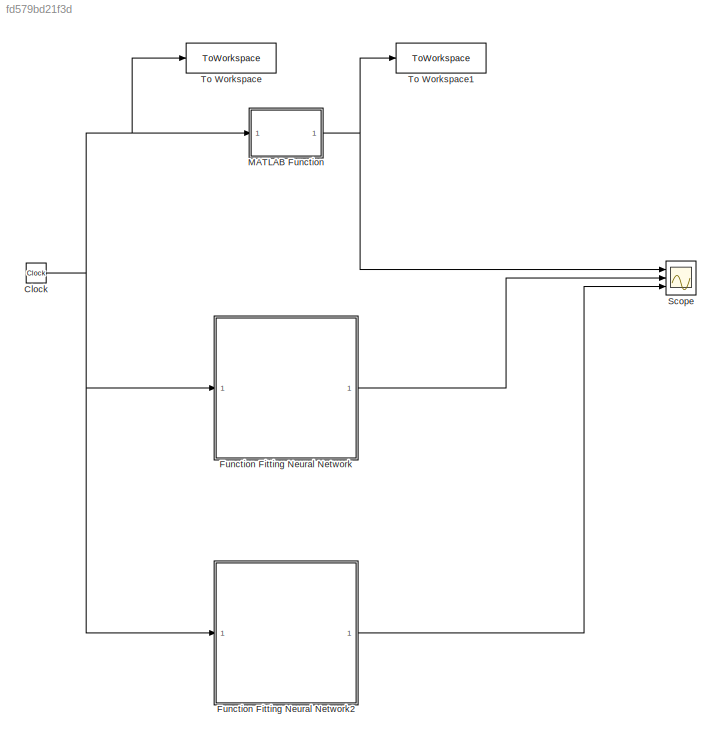
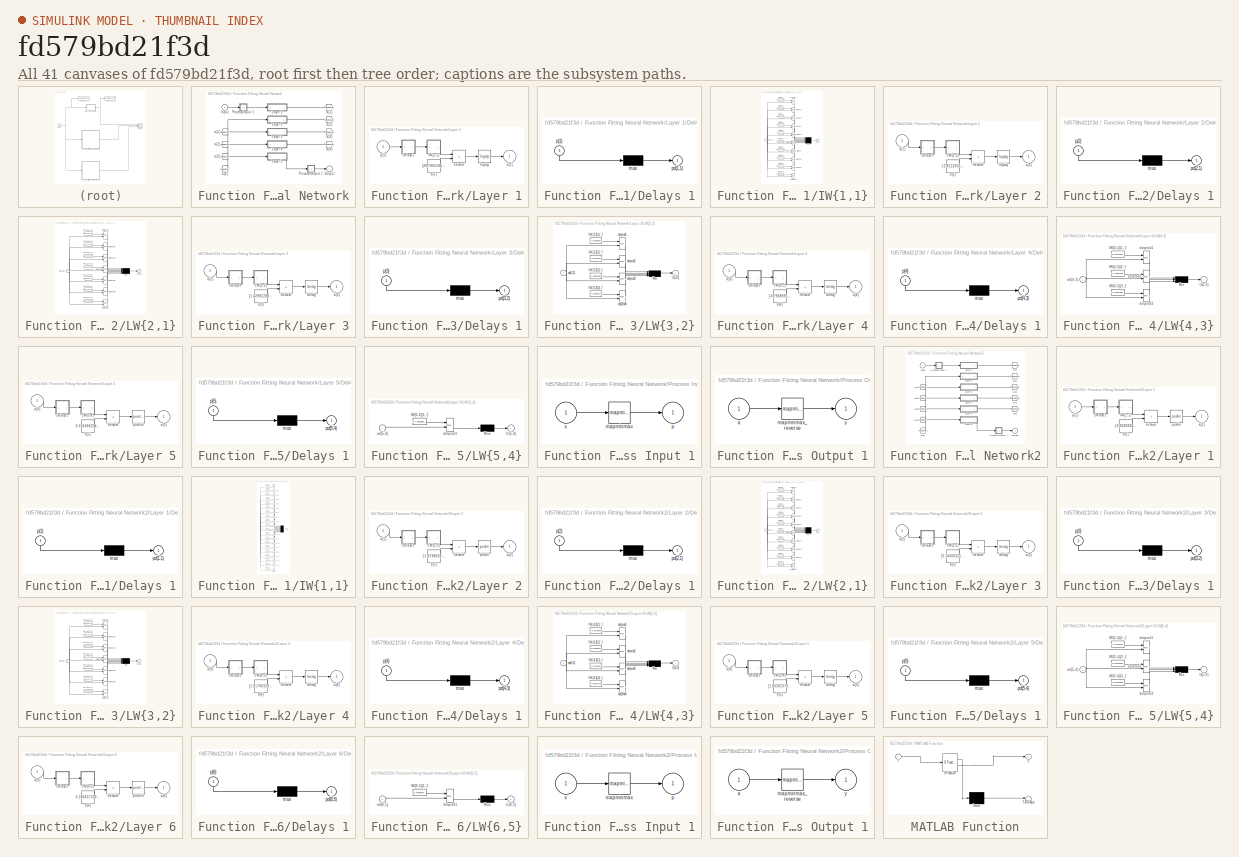
[diagram: thumbnail index - all 41 canvases of the model, root first then tree order]
MODEL slx_fd579bd21f3d
KIND model
CONFIG AbsTol = auto
CONFIG EnableMultiTasking = off
CONFIG FixedStep = 0.01
CONFIG MaxStep = auto
CONFIG MinStep = auto
CONFIG RelTol = 1e-3
CONFIG SampleTimeConstraint = Unconstrained
CONFIG SolverName = ode4
CONFIG StartTime = 0.0
CONFIG StopTime = 20.0
BLOCK [Clock] Clock
BLOCK [SubSystem] Function Fitting Neural Network
  Ports = [1, 1]
  RequestExecContextInheritance = off
BLOCK [From] Function Fitting Neural Network/ a{1} 
  GotoTag = feedback1
BLOCK [From] Function Fitting Neural Network/ a{2} 
  GotoTag = feedback2
BLOCK [From] Function Fitting Neural Network/ a{3} 
  GotoTag = feedback3
BLOCK [From] Function Fitting Neural Network/ a{4} 
  GotoTag = feedback4
BLOCK [Inport] Function Fitting Neural Network/Input
  PortDimensions = 1
BLOCK [SubSystem] Function Fitting Neural Network/Layer 1
  Ports = [1, 1]
  RequestExecContextInheritance = off
BLOCK [SubSystem] Function Fitting Neural Network/Layer 1/Delays 1
  Ports = [1, 1]
  RequestExecContextInheritance = off
BLOCK [Mux] Function Fitting Neural Network/Layer 1/Delays 1/mux
  Inputs = 1
  Ports = [1, 1]
BLOCK [Outport] Function Fitting Neural Network/Layer 1/Delays 1/pd{1,1}
BLOCK [Inport] Function Fitting Neural Network/Layer 1/Delays 1/p{1}
  NameLocation = left
  PortDimensions = 1
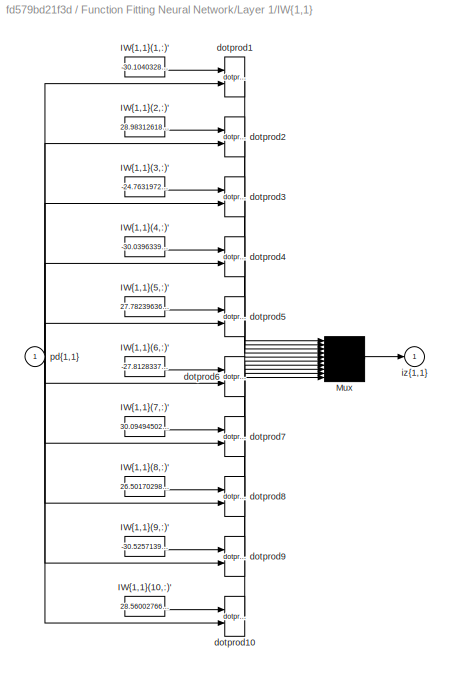
BLOCK [SubSystem] Function Fitting Neural Network/Layer 1/IW{1,1}
  Ports = [1, 1]
  RequestExecContextInheritance = off
BLOCK [Constant] Function Fitting Neural Network/Layer 1/IW{1,1}/IW{1,1}(1,:)'
  Value = -30.104032820391207536658839671872556209564208984375
BLOCK [Constant] Function Fitting Neural Network/Layer 1/IW{1,1}/IW{1,1}(10,:)'
  Value = 28.56002766560460059963588719256222248077392578125
BLOCK [Constant] Function Fitting Neural Network/Layer 1/IW{1,1}/IW{1,1}(2,:)'
  Value = 28.98312618550324515354077448137104511260986328125
BLOCK [Constant] Function Fitting Neural Network/Layer 1/IW{1,1}/IW{1,1}(3,:)'
  Value = -24.76319722132105738410245976410806179046630859375
BLOCK [Constant] Function Fitting Neural Network/Layer 1/IW{1,1}/IW{1,1}(4,:)'
  Value = -30.039633924596518710359305259771645069122314453125
BLOCK [Constant] Function Fitting Neural Network/Layer 1/IW{1,1}/IW{1,1}(5,:)'
  Value = 27.782396364839332392193682608194649219512939453125
BLOCK [Constant] Function Fitting Neural Network/Layer 1/IW{1,1}/IW{1,1}(6,:)'
  Value = -27.81283376835570919638485065661370754241943359375
BLOCK [Constant] Function Fitting Neural Network/Layer 1/IW{1,1}/IW{1,1}(7,:)'
  Value = 30.094945028052535462848027236759662628173828125
BLOCK [Constant] Function Fitting Neural Network/Layer 1/IW{1,1}/IW{1,1}(8,:)'
  Value = 26.50170298073720687170862220227718353271484375
BLOCK [Constant] Function Fitting Neural Network/Layer 1/IW{1,1}/IW{1,1}(9,:)'
  Value = -30.525713958083368737561613670550286769866943359375
BLOCK [Mux] Function Fitting Neural Network/Layer 1/IW{1,1}/Mux
  Inputs = 10
  Ports = [10, 1]
BLOCK [Reference] Function Fitting Neural Network/Layer 1/IW{1,1}/dotprod1  REF=neural/Weight Functions/dotprod
  Ports = [2, 1]
  SourceBlock = neural/Weight Functions/dotprod
  SourceProductBaseCode = NN
  SourceType = DOTPROD
BLOCK [Reference] Function Fitting Neural Network/Layer 1/IW{1,1}/dotprod10  REF=neural/Weight Functions/dotprod
  Ports = [2, 1]
  SourceBlock = neural/Weight Functions/dotprod
  SourceProductBaseCode = NN
  SourceType = DOTPROD
BLOCK [Reference] Function Fitting Neural Network/Layer 1/IW{1,1}/dotprod2  REF=neural/Weight Functions/dotprod
  Ports = [2, 1]
  SourceBlock = neural/Weight Functions/dotprod
  SourceProductBaseCode = NN
  SourceType = DOTPROD
BLOCK [Reference] Function Fitting Neural Network/Layer 1/IW{1,1}/dotprod3  REF=neural/Weight Functions/dotprod
  Ports = [2, 1]
  SourceBlock = neural/Weight Functions/dotprod
  SourceProductBaseCode = NN
  SourceType = DOTPROD
BLOCK [Reference] Function Fitting Neural Network/Layer 1/IW{1,1}/dotprod4  REF=neural/Weight Functions/dotprod
  Ports = [2, 1]
  SourceBlock = neural/Weight Functions/dotprod
  SourceProductBaseCode = NN
  SourceType = DOTPROD
BLOCK [Reference] Function Fitting Neural Network/Layer 1/IW{1,1}/dotprod5  REF=neural/Weight Functions/dotprod
  Ports = [2, 1]
  SourceBlock = neural/Weight Functions/dotprod
  SourceProductBaseCode = NN
  SourceType = DOTPROD
BLOCK [Reference] Function Fitting Neural Network/Layer 1/IW{1,1}/dotprod6  REF=neural/Weight Functions/dotprod
  Ports = [2, 1]
  SourceBlock = neural/Weight Functions/dotprod
  SourceProductBaseCode = NN
  SourceType = DOTPROD
BLOCK [Reference] Function Fitting Neural Network/Layer 1/IW{1,1}/dotprod7  REF=neural/Weight Functions/dotprod
  Ports = [2, 1]
  SourceBlock = neural/Weight Functions/dotprod
  SourceProductBaseCode = NN
  SourceType = DOTPROD
BLOCK [Reference] Function Fitting Neural Network/Layer 1/IW{1,1}/dotprod8  REF=neural/Weight Functions/dotprod
  Ports = [2, 1]
  SourceBlock = neural/Weight Functions/dotprod
  SourceProductBaseCode = NN
  SourceType = DOTPROD
BLOCK [Reference] Function Fitting Neural Network/Layer 1/IW{1,1}/dotprod9  REF=neural/Weight Functions/dotprod
  Ports = [2, 1]
  SourceBlock = neural/Weight Functions/dotprod
  SourceProductBaseCode = NN
  SourceType = DOTPROD
BLOCK [Outport] Function Fitting Neural Network/Layer 1/IW{1,1}/iz{1,1}
BLOCK [Inport] Function Fitting Neural Network/Layer 1/IW{1,1}/pd{1,1}
  PortDimensions = 1
BLOCK [Outport] Function Fitting Neural Network/Layer 1/a{1}
  InitialOutput = [0;0;0;0;0;0;0;0;0;0]
BLOCK [Constant] Function Fitting Neural Network/Layer 1/b{1}
  Value = [26.79621867098443743770985747687518596649169921875;-22.441570812384981081777368672192096710205078125;13.6119142884591592945753291132859885692596435546875;7.4515644057905063846192206256091594696044921875;-0.54597980936229661974579130401252768933773040771484375;-7.15453618020262371857143079978413879871368408203125;9.518549116669561271919519640505313873291015625;13.9181085908192674338579308823682367...<+117ch>
BLOCK [Reference] Function Fitting Neural Network/Layer 1/logsig  REF=neural/Transfer Functions/logsig
  Ports = [1, 1]
  SourceBlock = neural/Transfer Functions/logsig
  SourceProductBaseCode = NN
  SourceType = LOGSIG
BLOCK [Sum] Function Fitting Neural Network/Layer 1/netsum
  IconShape = rectangular
  InputSameDT = on
  Inputs = 2
  OutDataTypeStr = Inherit: Same as first input
  Ports = [2, 1]
  SaturateOnIntegerOverflow = on
BLOCK [Inport] Function Fitting Neural Network/Layer 1/p{1}
  PortDimensions = 1
BLOCK [SubSystem] Function Fitting Neural Network/Layer 2
  Ports = [1, 1]
  RequestExecContextInheritance = off
BLOCK [SubSystem] Function Fitting Neural Network/Layer 2/Delays 1
  Ports = [1, 1]
  RequestExecContextInheritance = off
BLOCK [Mux] Function Fitting Neural Network/Layer 2/Delays 1/mux
  Inputs = 1
  Ports = [1, 1]
BLOCK [Outport] Function Fitting Neural Network/Layer 2/Delays 1/pd{2,1}
BLOCK [Inport] Function Fitting Neural Network/Layer 2/Delays 1/p{2}
  NameLocation = left
  PortDimensions = 10
BLOCK [SubSystem] Function Fitting Neural Network/Layer 2/LW{2,1}
  Ports = [1, 1]
  RequestExecContextInheritance = off
BLOCK [Constant] Function Fitting Neural Network/Layer 2/LW{2,1}/IW{2,1}(1,:)'
  Value = [1.20003676365089262390029034577310085296630859375;2.234601363377471283655495426501147449016571044921875;1.782808803609400083445279960869811475276947021484375;-9.4166904803512760935291225905530154705047607421875;-0.0868599887379324642200373318701167590916156768798828125;-3.1243472384354564752584337838925421237945556640625;0.272500088043767407786077683340408839285373687744140625;1.97163501266956942...<+141ch>
BLOCK [Constant] Function Fitting Neural Network/Layer 2/LW{2,1}/IW{2,1}(2,:)'
  Value = [1.4115187978777588018175492834416218101978302001953125;-6.7359802583507164541742895380593836307525634765625;-7.4864977312936549225241833482868969440460205078125;0.1094811638149021659760506963721127249300479888916015625;-6.72566137500894090095471256063319742679595947265625;5.5322337163947796767615727731026709079742431640625;6.7484224633169755946937584667466580867767333984375;-10.686870240660613973...<+138ch>
BLOCK [Constant] Function Fitting Neural Network/Layer 2/LW{2,1}/IW{2,1}(3,:)'
  Value = [3.11751964382338098147329219500534236431121826171875;-2.113935972758601788967780521488748490810394287109375;1.3772173318704072908502666905405931174755096435546875;-0.69103259878106138014430825933231972157955169677734375;1.569068628404394427633405939559452235698699951171875;1.588220596242110982387885087518952786922454833984375;2.032640994619212992944312645704485476016998291015625;2.608142165105057...<+136ch>
BLOCK [Constant] Function Fitting Neural Network/Layer 2/LW{2,1}/IW{2,1}(4,:)'
  Value = [-2.746956621657257624491421665879897773265838623046875;-1.97783384105541681918793983641080558300018310546875;7.516752485532155247938135289587080478668212890625;-1.3330756701726114155093227964243851602077484130859375;-3.095480874754378941560162274981848895549774169921875;-4.327190772103588045638389303348958492279052734375;-0.10936354856549111713714950155917904339730739593505859375;4.99921389543021...<+142ch>
BLOCK [Constant] Function Fitting Neural Network/Layer 2/LW{2,1}/IW{2,1}(5,:)'
  Value = [-4.9830070509346882090540020726621150970458984375;-1.7404182726820740523265840238309465348720550537109375;0.499891352934601351787335943299694918096065521240234375;9.41749342918146936654011369682848453521728515625;8.6491731217627876304732126300223171710968017578125;-3.218594670912346078495147594367153942584991455078125;-1.8335777145468277193884887310559861361980438232421875;-3.56661331562081729273...<+140ch>
BLOCK [Constant] Function Fitting Neural Network/Layer 2/LW{2,1}/IW{2,1}(6,:)'
  Value = [6.68409048905482361391250378801487386226654052734375;-6.23279427295121468688421373371966183185577392578125;-8.9738522774265145898198170471005141735076904296875;-6.06538969597860511129283622722141444683074951171875;3.408097691943011486870318549335934221744537353515625;0.0803838379051274032338625374904950149357318878173828125;-0.61204534587211545382245958535349927842617034912109375;-12.185938255105...<+142ch>
BLOCK [Constant] Function Fitting Neural Network/Layer 2/LW{2,1}/IW{2,1}(7,:)'
  Value = [2.924186294301835520315080430009402334690093994140625;-1.00451340080159479128951716120354831218719482421875;-1.7369268610177075462530638105818070471286773681640625;1.644705777223987031021579241496510803699493408203125;2.977545815196904310795389392296783626079559326171875;3.734327344703105122647457392304204404354095458984375;-1.8667556324494471997610389735200442373752593994140625;-1.95716597778570...<+152ch>
BLOCK [Mux] Function Fitting Neural Network/Layer 2/LW{2,1}/Mux
  Inputs = 7
  Ports = [7, 1]
BLOCK [Inport] Function Fitting Neural Network/Layer 2/LW{2,1}/ad{2,1}
  PortDimensions = 10
BLOCK [Reference] Function Fitting Neural Network/Layer 2/LW{2,1}/dotprod1  REF=neural/Weight Functions/dotprod
  Ports = [2, 1]
  SourceBlock = neural/Weight Functions/dotprod
  SourceProductBaseCode = NN
  SourceType = DOTPROD
BLOCK [Reference] Function Fitting Neural Network/Layer 2/LW{2,1}/dotprod2  REF=neural/Weight Functions/dotprod
  Ports = [2, 1]
  SourceBlock = neural/Weight Functions/dotprod
  SourceProductBaseCode = NN
  SourceType = DOTPROD
BLOCK [Reference] Function Fitting Neural Network/Layer 2/LW{2,1}/dotprod3  REF=neural/Weight Functions/dotprod
  Ports = [2, 1]
  SourceBlock = neural/Weight Functions/dotprod
  SourceProductBaseCode = NN
  SourceType = DOTPROD
BLOCK [Reference] Function Fitting Neural Network/Layer 2/LW{2,1}/dotprod4  REF=neural/Weight Functions/dotprod
  Ports = [2, 1]
  SourceBlock = neural/Weight Functions/dotprod
  SourceProductBaseCode = NN
  SourceType = DOTPROD
BLOCK [Reference] Function Fitting Neural Network/Layer 2/LW{2,1}/dotprod5  REF=neural/Weight Functions/dotprod
  Ports = [2, 1]
  SourceBlock = neural/Weight Functions/dotprod
  SourceProductBaseCode = NN
  SourceType = DOTPROD
BLOCK [Reference] Function Fitting Neural Network/Layer 2/LW{2,1}/dotprod6  REF=neural/Weight Functions/dotprod
  Ports = [2, 1]
  SourceBlock = neural/Weight Functions/dotprod
  SourceProductBaseCode = NN
  SourceType = DOTPROD
BLOCK [Reference] Function Fitting Neural Network/Layer 2/LW{2,1}/dotprod7  REF=neural/Weight Functions/dotprod
  Ports = [2, 1]
  SourceBlock = neural/Weight Functions/dotprod
  SourceProductBaseCode = NN
  SourceType = DOTPROD
BLOCK [Outport] Function Fitting Neural Network/Layer 2/LW{2,1}/lz{2,1}
BLOCK [Inport] Function Fitting Neural Network/Layer 2/a{1} 
  PortDimensions = 10
BLOCK [Outport] Function Fitting Neural Network/Layer 2/a{2}
  InitialOutput = [0;0;0;0;0;0;0]
BLOCK [Constant] Function Fitting Neural Network/Layer 2/b{2}
  Value = [-2.812263577027590333301532155019231140613555908203125;8.6742047715985872713417847990058362483978271484375;-5.6861690563289979394312467775307595729827880859375;0.995338763581665286750421728356741368770599365234375;-2.249776044404210306737468272331170737743377685546875;5.48622319245626410832983310683630406856536865234375;6.9836125269603268606033452670089900493621826171875]
BLOCK [Reference] Function Fitting Neural Network/Layer 2/logsig  REF=neural/Transfer Functions/logsig
  Ports = [1, 1]
  SourceBlock = neural/Transfer Functions/logsig
  SourceProductBaseCode = NN
  SourceType = LOGSIG
BLOCK [Sum] Function Fitting Neural Network/Layer 2/netsum
  IconShape = rectangular
  InputSameDT = on
  Inputs = 2
  OutDataTypeStr = Inherit: Same as first input
  Ports = [2, 1]
  SaturateOnIntegerOverflow = on
BLOCK [SubSystem] Function Fitting Neural Network/Layer 3
  Ports = [1, 1]
  RequestExecContextInheritance = off
BLOCK [SubSystem] Function Fitting Neural Network/Layer 3/Delays 1
  Ports = [1, 1]
  RequestExecContextInheritance = off
BLOCK [Mux] Function Fitting Neural Network/Layer 3/Delays 1/mux
  Inputs = 1
  Ports = [1, 1]
BLOCK [Outport] Function Fitting Neural Network/Layer 3/Delays 1/pd{3,2}
BLOCK [Inport] Function Fitting Neural Network/Layer 3/Delays 1/p{3}
  NameLocation = left
  PortDimensions = 7
BLOCK [SubSystem] Function Fitting Neural Network/Layer 3/LW{3,2}
  Ports = [1, 1]
  RequestExecContextInheritance = off
BLOCK [Constant] Function Fitting Neural Network/Layer 3/LW{3,2}/IW{3,2}(1,:)'
  Value = [-0.490539442500498079624549063737504184246063232421875;-15.846566812484443431685576797462999820709228515625;3.59261668388942556617848822497762739658355712890625;2.902175714826703778470573524828068912029266357421875;3.0090783227725115267503497307188808917999267578125;10.6786142369558145759356193593703210353851318359375;2.814352149508998035543072546715848147869110107421875]
BLOCK [Constant] Function Fitting Neural Network/Layer 3/LW{3,2}/IW{3,2}(2,:)'
  Value = [-6.789716236233029889035606174729764461517333984375;-8.610714701160961936921012238599359989166259765625;1.2087500905303649734179316510562784969806671142578125;-4.1976779525630121270296513102948665618896484375;-7.1952042780260914156542639830149710178375244140625;0.518995824024170104848963092081248760223388671875;5.349359566469896520857219002209603786468505859375]
BLOCK [Constant] Function Fitting Neural Network/Layer 3/LW{3,2}/IW{3,2}(3,:)'
  Value = [2.4948786547191357243491438566707074642181396484375;-2.205884178976445841868780917138792574405670166015625;0.55069768681079522831822714579175226390361785888671875;4.03535076165257233782313051051460206508636474609375;-1.59098606822704535801449310383759438991546630859375;0.9236811463419096757121451446437276899814605712890625;-2.170834413972120291447254203376360237598419189453125]
BLOCK [Constant] Function Fitting Neural Network/Layer 3/LW{3,2}/IW{3,2}(4,:)'
  Value = [5.20283011475232282094793845317326486110687255859375;-7.34781121710008822134341244236566126346588134765625;-2.137281489270974166316818809718824923038482666015625;2.07777613321424947656623771763406693935394287109375;-6.68355705683339085254601741326041519641876220703125;-13.403051000195862485497855232097208499908447265625;-1.447020365405495834210114480811171233654022216796875]
BLOCK [Mux] Function Fitting Neural Network/Layer 3/LW{3,2}/Mux
  Ports = [4, 1]
BLOCK [Inport] Function Fitting Neural Network/Layer 3/LW{3,2}/ad{3,2}
  PortDimensions = 7
BLOCK [Reference] Function Fitting Neural Network/Layer 3/LW{3,2}/dotprod1  REF=neural/Weight Functions/dotprod
  Ports = [2, 1]
  SourceBlock = neural/Weight Functions/dotprod
  SourceProductBaseCode = NN
  SourceType = DOTPROD
BLOCK [Reference] Function Fitting Neural Network/Layer 3/LW{3,2}/dotprod2  REF=neural/Weight Functions/dotprod
  Ports = [2, 1]
  SourceBlock = neural/Weight Functions/dotprod
  SourceProductBaseCode = NN
  SourceType = DOTPROD
BLOCK [Reference] Function Fitting Neural Network/Layer 3/LW{3,2}/dotprod3  REF=neural/Weight Functions/dotprod
  Ports = [2, 1]
  SourceBlock = neural/Weight Functions/dotprod
  SourceProductBaseCode = NN
  SourceType = DOTPROD
BLOCK [Reference] Function Fitting Neural Network/Layer 3/LW{3,2}/dotprod4  REF=neural/Weight Functions/dotprod
  Ports = [2, 1]
  SourceBlock = neural/Weight Functions/dotprod
  SourceProductBaseCode = NN
  SourceType = DOTPROD
BLOCK [Outport] Function Fitting Neural Network/Layer 3/LW{3,2}/lz{3,2}
BLOCK [Inport] Function Fitting Neural Network/Layer 3/a{2} 
  PortDimensions = 7
BLOCK [Outport] Function Fitting Neural Network/Layer 3/a{3}
  InitialOutput = [0;0;0;0]
BLOCK [Constant] Function Fitting Neural Network/Layer 3/b{3}
  Value = [1.429822887961292199321405860246159136295318603515625;0.9375554345063659145154133511823602020740509033203125;1.68302947038619432618133942014537751674652099609375;2.376548225483961385151587819564156234264373779296875]
BLOCK [Sum] Function Fitting Neural Network/Layer 3/netsum
  IconShape = rectangular
  InputSameDT = on
  Inputs = 2
  OutDataTypeStr = Inherit: Same as first input
  Ports = [2, 1]
  SaturateOnIntegerOverflow = on
BLOCK [Reference] Function Fitting Neural Network/Layer 3/tansig  REF=neural/Transfer Functions/tansig
  Ports = [1, 1]
  SourceBlock = neural/Transfer Functions/tansig
  SourceProductBaseCode = NN
  SourceType = TANSIG
BLOCK [SubSystem] Function Fitting Neural Network/Layer 4
  Ports = [1, 1]
  RequestExecContextInheritance = off
BLOCK [SubSystem] Function Fitting Neural Network/Layer 4/Delays 1
  Ports = [1, 1]
  RequestExecContextInheritance = off
BLOCK [Mux] Function Fitting Neural Network/Layer 4/Delays 1/mux
  Inputs = 1
  Ports = [1, 1]
BLOCK [Outport] Function Fitting Neural Network/Layer 4/Delays 1/pd{4,3}
BLOCK [Inport] Function Fitting Neural Network/Layer 4/Delays 1/p{4}
  NameLocation = left
  PortDimensions = 4
BLOCK [SubSystem] Function Fitting Neural Network/Layer 4/LW{4,3}
  Ports = [1, 1]
  RequestExecContextInheritance = off
BLOCK [Constant] Function Fitting Neural Network/Layer 4/LW{4,3}/IW{4,3}(1,:)'
  Value = [0.20472394083620371052489872454316355288028717041015625;-0.372590702529589312685942559255636297166347503662109375;-1.2415726517420158092619431045022793114185333251953125;0.200278999360634035742378955546882934868335723876953125]
BLOCK [Constant] Function Fitting Neural Network/Layer 4/LW{4,3}/IW{4,3}(2,:)'
  Value = [-7.5561198312269954868725108099170029163360595703125;13.587081055134969886921680881641805171966552734375;3.04283782637040811636097714654169976711273193359375;-5.92784326147874107704183188616298139095306396484375]
BLOCK [Constant] Function Fitting Neural Network/Layer 4/LW{4,3}/IW{4,3}(3,:)'
  Value = [2.049414051684482984683199902065098285675048828125;-0.374497499200560357568434710628935135900974273681640625;-1.554382520476579099266700723092071712017059326171875;-1.43796239410477877385119427344761788845062255859375]
BLOCK [Mux] Function Fitting Neural Network/Layer 4/LW{4,3}/Mux
  Inputs = 3
  Ports = [3, 1]
BLOCK [Inport] Function Fitting Neural Network/Layer 4/LW{4,3}/ad{4,3}
  PortDimensions = 4
BLOCK [Reference] Function Fitting Neural Network/Layer 4/LW{4,3}/dotprod1  REF=neural/Weight Functions/dotprod
  Ports = [2, 1]
  SourceBlock = neural/Weight Functions/dotprod
  SourceProductBaseCode = NN
  SourceType = DOTPROD
BLOCK [Reference] Function Fitting Neural Network/Layer 4/LW{4,3}/dotprod2  REF=neural/Weight Functions/dotprod
  Ports = [2, 1]
  SourceBlock = neural/Weight Functions/dotprod
  SourceProductBaseCode = NN
  SourceType = DOTPROD
BLOCK [Reference] Function Fitting Neural Network/Layer 4/LW{4,3}/dotprod3  REF=neural/Weight Functions/dotprod
  Ports = [2, 1]
  SourceBlock = neural/Weight Functions/dotprod
  SourceProductBaseCode = NN
  SourceType = DOTPROD
BLOCK [Outport] Function Fitting Neural Network/Layer 4/LW{4,3}/lz{4,3}
BLOCK [Inport] Function Fitting Neural Network/Layer 4/a{3} 
  PortDimensions = 4
BLOCK [Outport] Function Fitting Neural Network/Layer 4/a{4}
  InitialOutput = [0;0;0]
BLOCK [Constant] Function Fitting Neural Network/Layer 4/b{4}
  Value = [-0.79689952336469438431976186620886437594890594482421875;1.662812824408443912460597857716493308544158935546875;3.856064616780578102606114043737761676311492919921875]
BLOCK [Sum] Function Fitting Neural Network/Layer 4/netsum
  IconShape = rectangular
  InputSameDT = on
  Inputs = 2
  OutDataTypeStr = Inherit: Same as first input
  Ports = [2, 1]
  SaturateOnIntegerOverflow = on
BLOCK [Reference] Function Fitting Neural Network/Layer 4/tansig  REF=neural/Transfer Functions/tansig
  Ports = [1, 1]
  SourceBlock = neural/Transfer Functions/tansig
  SourceProductBaseCode = NN
  SourceType = TANSIG
BLOCK [SubSystem] Function Fitting Neural Network/Layer 5
  Ports = [1, 1]
  RequestExecContextInheritance = off
BLOCK [SubSystem] Function Fitting Neural Network/Layer 5/Delays 1
  Ports = [1, 1]
  RequestExecContextInheritance = off
BLOCK [Mux] Function Fitting Neural Network/Layer 5/Delays 1/mux
  Inputs = 1
  Ports = [1, 1]
BLOCK [Outport] Function Fitting Neural Network/Layer 5/Delays 1/pd{5,4}
BLOCK [Inport] Function Fitting Neural Network/Layer 5/Delays 1/p{5}
  NameLocation = left
  PortDimensions = 3
BLOCK [SubSystem] Function Fitting Neural Network/Layer 5/LW{5,4}
  Ports = [1, 1]
  RequestExecContextInheritance = off
BLOCK [Constant] Function Fitting Neural Network/Layer 5/LW{5,4}/IW{5,4}(1,:)'
  Value = [-1.205585529911043618511712338658981025218963623046875;-0.42772410042442754463110077267629094421863555908203125;-0.59076921678167970686246235345606692135334014892578125]
BLOCK [Mux] Function Fitting Neural Network/Layer 5/LW{5,4}/Mux
  Inputs = 1
  Ports = [1, 1]
BLOCK [Inport] Function Fitting Neural Network/Layer 5/LW{5,4}/ad{5,4}
  PortDimensions = 3
BLOCK [Reference] Function Fitting Neural Network/Layer 5/LW{5,4}/dotprod1  REF=neural/Weight Functions/dotprod
  Ports = [2, 1]
  SourceBlock = neural/Weight Functions/dotprod
  SourceProductBaseCode = NN
  SourceType = DOTPROD
BLOCK [Outport] Function Fitting Neural Network/Layer 5/LW{5,4}/lz{5,4}
BLOCK [Inport] Function Fitting Neural Network/Layer 5/a{4} 
  PortDimensions = 3
BLOCK [Outport] Function Fitting Neural Network/Layer 5/a{5}
  InitialOutput = 0
BLOCK [Constant] Function Fitting Neural Network/Layer 5/b{5}
  Value = 0.0364862544064477323235706762716290540993213653564453125
BLOCK [Sum] Function Fitting Neural Network/Layer 5/netsum
  IconShape = rectangular
  InputSameDT = on
  Inputs = 2
  OutDataTypeStr = Inherit: Same as first input
  Ports = [2, 1]
  SaturateOnIntegerOverflow = on
BLOCK [Reference] Function Fitting Neural Network/Layer 5/purelin  REF=neural/Transfer Functions/purelin
  Ports = [1, 1]
  SourceBlock = neural/Transfer Functions/purelin
  SourceProductBaseCode = NN
  SourceType = PURELIN
BLOCK [Outport] Function Fitting Neural Network/Output
  InitialOutput = 0
BLOCK [SubSystem] Function Fitting Neural Network/Process Input 1
  Ports = [1, 1]
  RequestExecContextInheritance = off
BLOCK [Reference] Function Fitting Neural Network/Process Input 1/mapminmax  REF=neural/Processing Functions/mapminmax
  Ports = [1, 1]
  SourceBlock = neural/Processing Functions/mapminmax
  SourceProductBaseCode = NN
  SourceType = MAPMINMAX Preprocess
BLOCK [Outport] Function Fitting Neural Network/Process Input 1/p
  PortDimensions = 1
BLOCK [Inport] Function Fitting Neural Network/Process Input 1/x
  PortDimensions = 1
BLOCK [SubSystem] Function Fitting Neural Network/Process Output 1
  Ports = [1, 1]
  RequestExecContextInheritance = off
BLOCK [Inport] Function Fitting Neural Network/Process Output 1/a
  PortDimensions = 1
BLOCK [Reference] Function Fitting Neural Network/Process Output 1/mapminmax_reverse  REF=neural/Processing Functions/mapminmax_reverse
  Ports = [1, 1]
  SourceBlock = neural/Processing Functions/mapminmax_reverse
  SourceProductBaseCode = NN
  SourceType = MAPMINMAX Reverse Process
BLOCK [Outport] Function Fitting Neural Network/Process Output 1/y
  PortDimensions = 1
BLOCK [Goto] Function Fitting Neural Network/a{1}
  GotoTag = feedback1
BLOCK [Goto] Function Fitting Neural Network/a{2}
  GotoTag = feedback2
BLOCK [Goto] Function Fitting Neural Network/a{3}
  GotoTag = feedback3
BLOCK [Goto] Function Fitting Neural Network/a{4}
  GotoTag = feedback4
BLOCK [SubSystem] Function Fitting Neural Network2
  Ports = [1, 1]
  RequestExecContextInheritance = off
BLOCK [From] Function Fitting Neural Network2/ a{1} 
  GotoTag = feedback1
BLOCK [From] Function Fitting Neural Network2/ a{2} 
  GotoTag = feedback2
BLOCK [From] Function Fitting Neural Network2/ a{3} 
  GotoTag = feedback3
BLOCK [From] Function Fitting Neural Network2/ a{4} 
  GotoTag = feedback4
BLOCK [From] Function Fitting Neural Network2/ a{5} 
  GotoTag = feedback5
BLOCK [Inport] Function Fitting Neural Network2/Input
  PortDimensions = 1
BLOCK [SubSystem] Function Fitting Neural Network2/Layer 1
  Ports = [1, 1]
  RequestExecContextInheritance = off
BLOCK [SubSystem] Function Fitting Neural Network2/Layer 1/Delays 1
  Ports = [1, 1]
  RequestExecContextInheritance = off
BLOCK [Mux] Function Fitting Neural Network2/Layer 1/Delays 1/mux
  Inputs = 1
  Ports = [1, 1]
BLOCK [Outport] Function Fitting Neural Network2/Layer 1/Delays 1/pd{1,1}
BLOCK [Inport] Function Fitting Neural Network2/Layer 1/Delays 1/p{1}
  NameLocation = left
  PortDimensions = 1
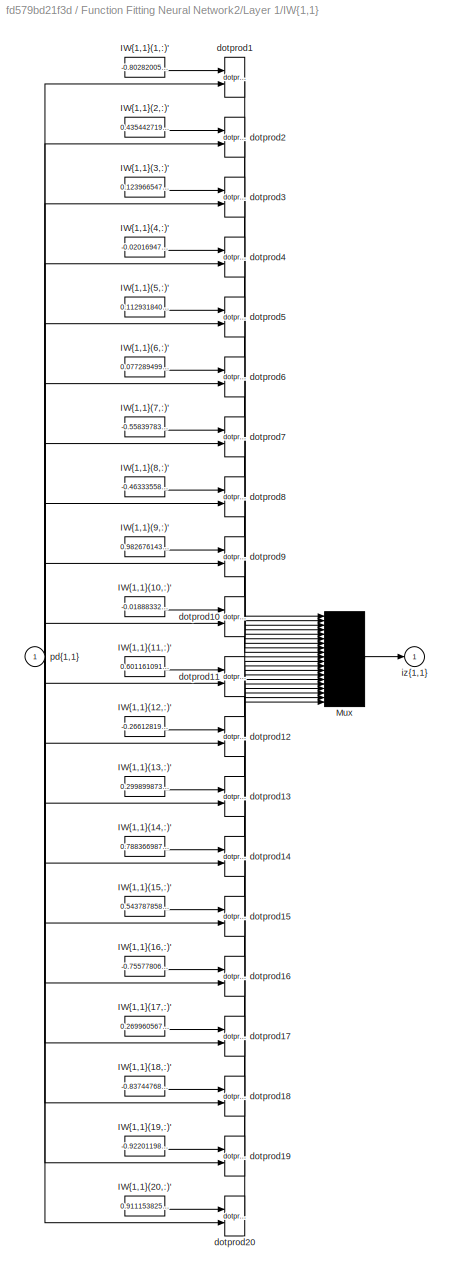
BLOCK [SubSystem] Function Fitting Neural Network2/Layer 1/IW{1,1}
  Ports = [1, 1]
  RequestExecContextInheritance = off
BLOCK [Constant] Function Fitting Neural Network2/Layer 1/IW{1,1}/IW{1,1}(1,:)'
  Value = -0.802820059761425230959730470203794538974761962890625
BLOCK [Constant] Function Fitting Neural Network2/Layer 1/IW{1,1}/IW{1,1}(10,:)'
  Value = -0.018883324154009617501515094772912561893463134765625
BLOCK [Constant] Function Fitting Neural Network2/Layer 1/IW{1,1}/IW{1,1}(11,:)'
  Value = 0.60116109105297155235092532166163437068462371826171875
BLOCK [Constant] Function Fitting Neural Network2/Layer 1/IW{1,1}/IW{1,1}(12,:)'
  Value = -0.266128198931715076458459634523023851215839385986328125
BLOCK [Constant] Function Fitting Neural Network2/Layer 1/IW{1,1}/IW{1,1}(13,:)'
  Value = 0.2998998737266058700612347820424474775791168212890625
BLOCK [Constant] Function Fitting Neural Network2/Layer 1/IW{1,1}/IW{1,1}(14,:)'
  Value = 0.7883669879044383765887005210970528423786163330078125
BLOCK [Constant] Function Fitting Neural Network2/Layer 1/IW{1,1}/IW{1,1}(15,:)'
  Value = 0.543787858009098012956883394508622586727142333984375
BLOCK [Constant] Function Fitting Neural Network2/Layer 1/IW{1,1}/IW{1,1}(16,:)'
  Value = -0.75577806083006915383037949140998534858226776123046875
BLOCK [Constant] Function Fitting Neural Network2/Layer 1/IW{1,1}/IW{1,1}(17,:)'
  Value = 0.2699605678152554588677958236075937747955322265625
BLOCK [Constant] Function Fitting Neural Network2/Layer 1/IW{1,1}/IW{1,1}(18,:)'
  Value = -0.83744768510883804690791976099717430770397186279296875
BLOCK [Constant] Function Fitting Neural Network2/Layer 1/IW{1,1}/IW{1,1}(19,:)'
  Value = -0.92201198882990265115466854695114307105541229248046875
BLOCK [Constant] Function Fitting Neural Network2/Layer 1/IW{1,1}/IW{1,1}(2,:)'
  Value = 0.435442719227917773849867444369010627269744873046875
BLOCK [Constant] Function Fitting Neural Network2/Layer 1/IW{1,1}/IW{1,1}(20,:)'
  Value = 0.91115382560020952151802475782460533082485198974609375
BLOCK [Constant] Function Fitting Neural Network2/Layer 1/IW{1,1}/IW{1,1}(3,:)'
  Value = 0.1239665473289388586408676928840577602386474609375
BLOCK [Constant] Function Fitting Neural Network2/Layer 1/IW{1,1}/IW{1,1}(4,:)'
  Value = -0.0201694775761993572160690746386535465717315673828125
BLOCK [Constant] Function Fitting Neural Network2/Layer 1/IW{1,1}/IW{1,1}(5,:)'
  Value = 0.1129318408768340276093766760823200456798076629638671875
BLOCK [Constant] Function Fitting Neural Network2/Layer 1/IW{1,1}/IW{1,1}(6,:)'
  Value = 0.0772894996763990871357918877038173377513885498046875
BLOCK [Constant] Function Fitting Neural Network2/Layer 1/IW{1,1}/IW{1,1}(7,:)'
  Value = -0.5583978332387122822666469801333732903003692626953125
BLOCK [Constant] Function Fitting Neural Network2/Layer 1/IW{1,1}/IW{1,1}(8,:)'
  Value = -0.46333558271573316300617761953617446124553680419921875
BLOCK [Constant] Function Fitting Neural Network2/Layer 1/IW{1,1}/IW{1,1}(9,:)'
  Value = 0.98267614365429178935329446176183409988880157470703125
BLOCK [Mux] Function Fitting Neural Network2/Layer 1/IW{1,1}/Mux
  Inputs = 20
  Ports = [20, 1]
BLOCK [Reference] Function Fitting Neural Network2/Layer 1/IW{1,1}/dotprod1  REF=neural/Weight Functions/dotprod
  Ports = [2, 1]
  SourceBlock = neural/Weight Functions/dotprod
  SourceProductBaseCode = NN
  SourceType = DOTPROD
BLOCK [Reference] Function Fitting Neural Network2/Layer 1/IW{1,1}/dotprod10  REF=neural/Weight Functions/dotprod
  Ports = [2, 1]
  SourceBlock = neural/Weight Functions/dotprod
  SourceProductBaseCode = NN
  SourceType = DOTPROD
BLOCK [Reference] Function Fitting Neural Network2/Layer 1/IW{1,1}/dotprod11  REF=neural/Weight Functions/dotprod
  Ports = [2, 1]
  SourceBlock = neural/Weight Functions/dotprod
  SourceProductBaseCode = NN
  SourceType = DOTPROD
BLOCK [Reference] Function Fitting Neural Network2/Layer 1/IW{1,1}/dotprod12  REF=neural/Weight Functions/dotprod
  Ports = [2, 1]
  SourceBlock = neural/Weight Functions/dotprod
  SourceProductBaseCode = NN
  SourceType = DOTPROD
BLOCK [Reference] Function Fitting Neural Network2/Layer 1/IW{1,1}/dotprod13  REF=neural/Weight Functions/dotprod
  Ports = [2, 1]
  SourceBlock = neural/Weight Functions/dotprod
  SourceProductBaseCode = NN
  SourceType = DOTPROD
BLOCK [Reference] Function Fitting Neural Network2/Layer 1/IW{1,1}/dotprod14  REF=neural/Weight Functions/dotprod
  Ports = [2, 1]
  SourceBlock = neural/Weight Functions/dotprod
  SourceProductBaseCode = NN
  SourceType = DOTPROD
BLOCK [Reference] Function Fitting Neural Network2/Layer 1/IW{1,1}/dotprod15  REF=neural/Weight Functions/dotprod
  Ports = [2, 1]
  SourceBlock = neural/Weight Functions/dotprod
  SourceProductBaseCode = NN
  SourceType = DOTPROD
BLOCK [Reference] Function Fitting Neural Network2/Layer 1/IW{1,1}/dotprod16  REF=neural/Weight Functions/dotprod
  Ports = [2, 1]
  SourceBlock = neural/Weight Functions/dotprod
  SourceProductBaseCode = NN
  SourceType = DOTPROD
BLOCK [Reference] Function Fitting Neural Network2/Layer 1/IW{1,1}/dotprod17  REF=neural/Weight Functions/dotprod
  Ports = [2, 1]
  SourceBlock = neural/Weight Functions/dotprod
  SourceProductBaseCode = NN
  SourceType = DOTPROD
BLOCK [Reference] Function Fitting Neural Network2/Layer 1/IW{1,1}/dotprod18  REF=neural/Weight Functions/dotprod
  Ports = [2, 1]
  SourceBlock = neural/Weight Functions/dotprod
  SourceProductBaseCode = NN
  SourceType = DOTPROD
BLOCK [Reference] Function Fitting Neural Network2/Layer 1/IW{1,1}/dotprod19  REF=neural/Weight Functions/dotprod
  Ports = [2, 1]
  SourceBlock = neural/Weight Functions/dotprod
  SourceProductBaseCode = NN
  SourceType = DOTPROD
BLOCK [Reference] Function Fitting Neural Network2/Layer 1/IW{1,1}/dotprod2  REF=neural/Weight Functions/dotprod
  Ports = [2, 1]
  SourceBlock = neural/Weight Functions/dotprod
  SourceProductBaseCode = NN
  SourceType = DOTPROD
BLOCK [Reference] Function Fitting Neural Network2/Layer 1/IW{1,1}/dotprod20  REF=neural/Weight Functions/dotprod
  Ports = [2, 1]
  SourceBlock = neural/Weight Functions/dotprod
  SourceProductBaseCode = NN
  SourceType = DOTPROD
BLOCK [Reference] Function Fitting Neural Network2/Layer 1/IW{1,1}/dotprod3  REF=neural/Weight Functions/dotprod
  Ports = [2, 1]
  SourceBlock = neural/Weight Functions/dotprod
  SourceProductBaseCode = NN
  SourceType = DOTPROD
BLOCK [Reference] Function Fitting Neural Network2/Layer 1/IW{1,1}/dotprod4  REF=neural/Weight Functions/dotprod
  Ports = [2, 1]
  SourceBlock = neural/Weight Functions/dotprod
  SourceProductBaseCode = NN
  SourceType = DOTPROD
BLOCK [Reference] Function Fitting Neural Network2/Layer 1/IW{1,1}/dotprod5  REF=neural/Weight Functions/dotprod
  Ports = [2, 1]
  SourceBlock = neural/Weight Functions/dotprod
  SourceProductBaseCode = NN
  SourceType = DOTPROD
BLOCK [Reference] Function Fitting Neural Network2/Layer 1/IW{1,1}/dotprod6  REF=neural/Weight Functions/dotprod
  Ports = [2, 1]
  SourceBlock = neural/Weight Functions/dotprod
  SourceProductBaseCode = NN
  SourceType = DOTPROD
BLOCK [Reference] Function Fitting Neural Network2/Layer 1/IW{1,1}/dotprod7  REF=neural/Weight Functions/dotprod
  Ports = [2, 1]
  SourceBlock = neural/Weight Functions/dotprod
  SourceProductBaseCode = NN
  SourceType = DOTPROD
BLOCK [Reference] Function Fitting Neural Network2/Layer 1/IW{1,1}/dotprod8  REF=neural/Weight Functions/dotprod
  Ports = [2, 1]
  SourceBlock = neural/Weight Functions/dotprod
  SourceProductBaseCode = NN
  SourceType = DOTPROD
BLOCK [Reference] Function Fitting Neural Network2/Layer 1/IW{1,1}/dotprod9  REF=neural/Weight Functions/dotprod
  Ports = [2, 1]
  SourceBlock = neural/Weight Functions/dotprod
  SourceProductBaseCode = NN
  SourceType = DOTPROD
BLOCK [Outport] Function Fitting Neural Network2/Layer 1/IW{1,1}/iz{1,1}
BLOCK [Inport] Function Fitting Neural Network2/Layer 1/IW{1,1}/pd{1,1}
  PortDimensions = 1
BLOCK [Outport] Function Fitting Neural Network2/Layer 1/a{1}
  InitialOutput = [0;0;0;0;0;0;0;0;0;0;0;0;0;0;0;0;0;0;0;0]
BLOCK [Constant] Function Fitting Neural Network2/Layer 1/b{1}
  Value = [-0.9290284158215633691924040249432437121868133544921875;0.84266730159316105552846920545562170445919036865234375;0.405998595421127650428871902477112598717212677001953125;-0.9995515823011562606126290120300836861133575439453125;-0.1374423544559839338585760515343281440436840057373046875;-0.5094727857763603484642089824774302542209625244140625;0.43242399436586709260410543720354326069355010986328125;0.8...<+716ch>
BLOCK [Sum] Function Fitting Neural Network2/Layer 1/netsum
  IconShape = rectangular
  InputSameDT = on
  Inputs = 2
  OutDataTypeStr = Inherit: Same as first input
  Ports = [2, 1]
  SaturateOnIntegerOverflow = on
BLOCK [Reference] Function Fitting Neural Network2/Layer 1/poslin  REF=neural/Transfer Functions/poslin
  Ports = [1, 1]
  SourceBlock = neural/Transfer Functions/poslin
  SourceProductBaseCode = NN
  SourceType = POSLIN
BLOCK [Inport] Function Fitting Neural Network2/Layer 1/p{1}
  PortDimensions = 1
BLOCK [SubSystem] Function Fitting Neural Network2/Layer 2
  Ports = [1, 1]
  RequestExecContextInheritance = off
BLOCK [SubSystem] Function Fitting Neural Network2/Layer 2/Delays 1
  Ports = [1, 1]
  RequestExecContextInheritance = off
BLOCK [Mux] Function Fitting Neural Network2/Layer 2/Delays 1/mux
  Inputs = 1
  Ports = [1, 1]
BLOCK [Outport] Function Fitting Neural Network2/Layer 2/Delays 1/pd{2,1}
BLOCK [Inport] Function Fitting Neural Network2/Layer 2/Delays 1/p{2}
  NameLocation = left
  PortDimensions = 20
BLOCK [SubSystem] Function Fitting Neural Network2/Layer 2/LW{2,1}
  Ports = [1, 1]
  RequestExecContextInheritance = off
BLOCK [Constant] Function Fitting Neural Network2/Layer 2/LW{2,1}/IW{2,1}(1,:)'
  Value = [0.4233220659569081334439033525995910167694091796875;-0.374459186748125227861550001762225292623043060302734375;-0.4008310913362673755244713902357034385204315185546875;-0.1994238902807949909146145728300325572490692138671875;0.5375545733360251876575830465299077332019805908203125;0.147117570719644152887894961168058216571807861328125;0.92305596912199761039374834581394679844379425048828125;-0.409721769...<+709ch>
BLOCK [Constant] Function Fitting Neural Network2/Layer 2/LW{2,1}/IW{2,1}(10,:)'
  Value = [-0.641823686300614593136515395599417388439178466796875;-0.57611530981641545512417224017553962767124176025390625;0.4506822834679926614853684441186487674713134765625;-0.5687292177741045673400321902590803802013397216796875;-0.40973198690178869174616238524322398006916046142578125;-0.577013461462415389036095803021453320980072021484375;0.0348252966865300328525023587644682265818119049072265625;0.0487850...<+711ch>
BLOCK [Constant] Function Fitting Neural Network2/Layer 2/LW{2,1}/IW{2,1}(2,:)'
  Value = [0.9267158793257632698470160903525538742542266845703125;0.433902020263556786883185623082681559026241302490234375;-0.10168618853043387417756093782372772693634033203125;-0.274328681736670798585464581265114247798919677734375;0.8674294657313001977172461920417845249176025390625;0.0091816891689815438581945272744633257389068603515625;0.03649986353325578025685871352834510616958141326904296875;0.3638720552...<+711ch>
BLOCK [Constant] Function Fitting Neural Network2/Layer 2/LW{2,1}/IW{2,1}(3,:)'
  Value = [-0.1860200038175341408219765071407891809940338134765625;0.253725830101971805419225347577594220638275146484375;-0.329482345985616709160836990122334100306034088134765625;-0.1703163687669360104592897187103517353534698486328125;0.654083969207954307734098620130680501461029052734375;-0.9186996673614833408549884552485309541225433349609375;0.5792593773255438893698965330258943140506744384765625;1.08922496...<+710ch>
BLOCK [Constant] Function Fitting Neural Network2/Layer 2/LW{2,1}/IW{2,1}(4,:)'
  Value = [0.0596921102005569803594653421896509826183319091796875;-0.29404012198538909128586738006561063230037689208984375;-0.2236381837372818093268023176278802566230297088623046875;0.0839335493594630666081002345890738070011138916015625;-0.5312497406591323301228158015874214470386505126953125;-0.557734625791292959462452927255071699619293212890625;-1.027596207091554081358708572224713861942291259765625;-0.2475...<+716ch>
BLOCK [Constant] Function Fitting Neural Network2/Layer 2/LW{2,1}/IW{2,1}(5,:)'
  Value = [0.4153846667588947383364939014427363872528076171875;0.296420569983922799206510489966603927314281463623046875;-0.2198921257332393797145897451628115959465503692626953125;0.4687733490974348438129482019576244056224822998046875;0.1010827635564030269055280086831771768629550933837890625;-0.419128890496473172078140123630873858928680419921875;-0.239652803072303133280485099021461792290210723876953125;-0.54...<+715ch>
BLOCK [Constant] Function Fitting Neural Network2/Layer 2/LW{2,1}/IW{2,1}(6,:)'
  Value = [0.7756418716974098348515553880133666098117828369140625;-0.52214811920143500145741199958138167858123779296875;0.90624130550253123583814840458217076957225799560546875;0.958145404562703806305989928659982979297637939453125;0.2414864996330721158557253147591836750507354736328125;-0.92203825978811693175885011442005634307861328125;-0.41878681935602291019904441782273352146148681640625;0.406340418190164642...<+699ch>
BLOCK [Constant] Function Fitting Neural Network2/Layer 2/LW{2,1}/IW{2,1}(7,:)'
  Value = [0.9958550495234650412612609216012060642242431640625;-0.9105791191313945542873398153460584580898284912109375;0.2021513896169669644020672194528742693364620208740234375;0.4812516297266089537743027904070913791656494140625;0.925262028393464941444790383684448897838592529296875;0.2794711487229657453923437060439027845859527587890625;0.299587380600494113114251604201854206621646881103515625;0.4837537111234...<+713ch>
BLOCK [Constant] Function Fitting Neural Network2/Layer 2/LW{2,1}/IW{2,1}(8,:)'
  Value = [-0.146352981776594059937224301393143832683563232421875;-0.5585810608975096958062067642458714544773101806640625;-0.103497170592506737563098795362748205661773681640625;0.9536347812189041039943049327121116220951080322265625;0.9118658279803273369878979792702011764049530029296875;-0.2897219007827394054999103900627233088016510009765625;-0.7521835351115322421122755258693359792232513427734375;0.968216525...<+706ch>
BLOCK [Constant] Function Fitting Neural Network2/Layer 2/LW{2,1}/IW{2,1}(9,:)'
  Value = [-0.326038916192606276212018201476894319057464599609375;0.227293688119313941342625184915959835052490234375;-0.453120159844958347861165748327039182186126708984375;-0.7164144267805754306976950829266570508480072021484375;-0.5948051054196732412293613379006274044513702392578125;0.1189372467351876849761538323946297168731689453125;-0.973061641275846600507293260307051241397857666015625;-0.1273954948634163...<+687ch>
BLOCK [Mux] Function Fitting Neural Network2/Layer 2/LW{2,1}/Mux
  Inputs = 10
  Ports = [10, 1]
BLOCK [Inport] Function Fitting Neural Network2/Layer 2/LW{2,1}/ad{2,1}
  PortDimensions = 20
BLOCK [Reference] Function Fitting Neural Network2/Layer 2/LW{2,1}/dotprod1  REF=neural/Weight Functions/dotprod
  Ports = [2, 1]
  SourceBlock = neural/Weight Functions/dotprod
  SourceProductBaseCode = NN
  SourceType = DOTPROD
BLOCK [Reference] Function Fitting Neural Network2/Layer 2/LW{2,1}/dotprod10  REF=neural/Weight Functions/dotprod
  Ports = [2, 1]
  SourceBlock = neural/Weight Functions/dotprod
  SourceProductBaseCode = NN
  SourceType = DOTPROD
BLOCK [Reference] Function Fitting Neural Network2/Layer 2/LW{2,1}/dotprod2  REF=neural/Weight Functions/dotprod
  Ports = [2, 1]
  SourceBlock = neural/Weight Functions/dotprod
  SourceProductBaseCode = NN
  SourceType = DOTPROD
BLOCK [Reference] Function Fitting Neural Network2/Layer 2/LW{2,1}/dotprod3  REF=neural/Weight Functions/dotprod
  Ports = [2, 1]
  SourceBlock = neural/Weight Functions/dotprod
  SourceProductBaseCode = NN
  SourceType = DOTPROD
BLOCK [Reference] Function Fitting Neural Network2/Layer 2/LW{2,1}/dotprod4  REF=neural/Weight Functions/dotprod
  Ports = [2, 1]
  SourceBlock = neural/Weight Functions/dotprod
  SourceProductBaseCode = NN
  SourceType = DOTPROD
BLOCK [Reference] Function Fitting Neural Network2/Layer 2/LW{2,1}/dotprod5  REF=neural/Weight Functions/dotprod
  Ports = [2, 1]
  SourceBlock = neural/Weight Functions/dotprod
  SourceProductBaseCode = NN
  SourceType = DOTPROD
BLOCK [Reference] Function Fitting Neural Network2/Layer 2/LW{2,1}/dotprod6  REF=neural/Weight Functions/dotprod
  Ports = [2, 1]
  SourceBlock = neural/Weight Functions/dotprod
  SourceProductBaseCode = NN
  SourceType = DOTPROD
BLOCK [Reference] Function Fitting Neural Network2/Layer 2/LW{2,1}/dotprod7  REF=neural/Weight Functions/dotprod
  Ports = [2, 1]
  SourceBlock = neural/Weight Functions/dotprod
  SourceProductBaseCode = NN
  SourceType = DOTPROD
BLOCK [Reference] Function Fitting Neural Network2/Layer 2/LW{2,1}/dotprod8  REF=neural/Weight Functions/dotprod
  Ports = [2, 1]
  SourceBlock = neural/Weight Functions/dotprod
  SourceProductBaseCode = NN
  SourceType = DOTPROD
BLOCK [Reference] Function Fitting Neural Network2/Layer 2/LW{2,1}/dotprod9  REF=neural/Weight Functions/dotprod
  Ports = [2, 1]
  SourceBlock = neural/Weight Functions/dotprod
  SourceProductBaseCode = NN
  SourceType = DOTPROD
BLOCK [Outport] Function Fitting Neural Network2/Layer 2/LW{2,1}/lz{2,1}
BLOCK [Inport] Function Fitting Neural Network2/Layer 2/a{1} 
  PortDimensions = 20
BLOCK [Outport] Function Fitting Neural Network2/Layer 2/a{2}
  InitialOutput = [0;0;0;0;0;0;0;0;0;0]
BLOCK [Constant] Function Fitting Neural Network2/Layer 2/b{2}
  Value = [-1.0788638509922121588857635288150049746036529541015625;-0.9607839225145144990136714113759808242321014404296875;0.99190602383407011632954208835144527256488800048828125;-0.2825361980338805256707246371661312878131866455078125;-1.2245969754992647171576436448958702385425567626953125;-0.27856704333547666063708447836688719689846038818359375;1.07880530785755723854890675283968448638916015625;-0.507240405...<+155ch>
BLOCK [Sum] Function Fitting Neural Network2/Layer 2/netsum
  IconShape = rectangular
  InputSameDT = on
  Inputs = 2
  OutDataTypeStr = Inherit: Same as first input
  Ports = [2, 1]
  SaturateOnIntegerOverflow = on
BLOCK [Reference] Function Fitting Neural Network2/Layer 2/poslin  REF=neural/Transfer Functions/poslin
  Ports = [1, 1]
  SourceBlock = neural/Transfer Functions/poslin
  SourceProductBaseCode = NN
  SourceType = POSLIN
BLOCK [SubSystem] Function Fitting Neural Network2/Layer 3
  Ports = [1, 1]
  RequestExecContextInheritance = off
BLOCK [SubSystem] Function Fitting Neural Network2/Layer 3/Delays 1
  Ports = [1, 1]
  RequestExecContextInheritance = off
BLOCK [Mux] Function Fitting Neural Network2/Layer 3/Delays 1/mux
  Inputs = 1
  Ports = [1, 1]
BLOCK [Outport] Function Fitting Neural Network2/Layer 3/Delays 1/pd{3,2}
BLOCK [Inport] Function Fitting Neural Network2/Layer 3/Delays 1/p{3}
  NameLocation = left
  PortDimensions = 10
BLOCK [SubSystem] Function Fitting Neural Network2/Layer 3/LW{3,2}
  Ports = [1, 1]
  RequestExecContextInheritance = off
BLOCK [Constant] Function Fitting Neural Network2/Layer 3/LW{3,2}/IW{3,2}(1,:)'
  Value = [-1.0656814362159130471496837344602681696414947509765625;-0.4368775340089821046518636649125255644321441650390625;-0.1996304602401152428203801036943332292139530181884765625;-1.291381367648069211639949571690522134304046630859375;-0.8462893352525153733978413583827205002307891845703125;-1.156136963582380161597029655240476131439208984375;1.4939587294726168753555839430191554129123687744140625;-0.3946383...<+157ch>
BLOCK [Constant] Function Fitting Neural Network2/Layer 3/LW{3,2}/IW{3,2}(2,:)'
  Value = [0.26619102065765265496821712076780386269092559814453125;1.4860714095217624208800089036230929195880889892578125;-1.2379305515771055201668104928103275597095489501953125;-1.686846141058044867833132229861803352832794189453125;-0.79270971382980126573869483763701282441616058349609375;0.85032037726400577781760148354806005954742431640625;1.455663671613197873710987551021389663219451904296875;0.25579940483...<+155ch>
BLOCK [Constant] Function Fitting Neural Network2/Layer 3/LW{3,2}/IW{3,2}(3,:)'
  Value = [0.85709622577944488686085833251127041876316070556640625;-1.5680453367674125342290381013299338519573211669921875;-1.8115357450113511728062576366937719285488128662109375;-0.5465241780178151653757367967045865952968597412109375;0.4852313390363607314981209128745831549167633056640625;1.1322374878048788726658813175163231790065765380859375;-0.9847967866965372518706089977058582007884979248046875;0.0424513...<+162ch>
BLOCK [Constant] Function Fitting Neural Network2/Layer 3/LW{3,2}/IW{3,2}(4,:)'
  Value = [-1.263966382930525877981153826112858951091766357421875;-1.66057717842236485239482135511934757232666015625;0.53047619992249084308610918014892376959323883056640625;-0.446435652863667709056016974500380456447601318359375;-0.304530475981944437346982113012927584350109100341796875;0.8384958464045755288651662340271286666393280029296875;1.85602986254819146694217124604620039463043212890625;-0.8761499733546...<+148ch>
BLOCK [Constant] Function Fitting Neural Network2/Layer 3/LW{3,2}/IW{3,2}(5,:)'
  Value = [1.845648541265947795153579136240296065807342529296875;-0.73906821445683068549925565093872137367725372314453125;0.9883741800210572581164569783140905201435089111328125;-1.196705730215592122789303175522945821285247802734375;0.1782752678566717763342097669010399840772151947021484375;-1.6813603066988720424745906711905263364315032958984375;-0.54386102667519542475105254197842441499233245849609375;1.22032...<+161ch>
BLOCK [Constant] Function Fitting Neural Network2/Layer 3/LW{3,2}/IW{3,2}(6,:)'
  Value = [-0.256287767413536149430086652500904165208339691162109375;-0.2273077398182028474593607825227081775665283203125;0.477180526603591614875909954207600094377994537353515625;-1.3036296685624615410148408045643009245395660400390625;-1.6613687264871417337275261161266826093196868896484375;-1.549176409869177373224147231667302548885345458984375;0.762126403446371281091842320165596902370452880859375;-0.1993059...<+159ch>
BLOCK [Constant] Function Fitting Neural Network2/Layer 3/LW{3,2}/IW{3,2}(7,:)'
  Value = [-1.6498923488845871343499993599834851920604705810546875;-0.26692173771894356359979383341851644217967987060546875;1.015898247179511049154143620398826897144317626953125;0.311702898542491169120438598838518373668193817138671875;-1.6698444543932919881257248562178574502468109130859375;1.6815984115239637208816247948561795055866241455078125;1.4784334280771214142902181265526451170444488525390625;-0.379525...<+160ch>
BLOCK [Mux] Function Fitting Neural Network2/Layer 3/LW{3,2}/Mux
  Inputs = 7
  Ports = [7, 1]
BLOCK [Inport] Function Fitting Neural Network2/Layer 3/LW{3,2}/ad{3,2}
  PortDimensions = 10
BLOCK [Reference] Function Fitting Neural Network2/Layer 3/LW{3,2}/dotprod1  REF=neural/Weight Functions/dotprod
  Ports = [2, 1]
  SourceBlock = neural/Weight Functions/dotprod
  SourceProductBaseCode = NN
  SourceType = DOTPROD
BLOCK [Reference] Function Fitting Neural Network2/Layer 3/LW{3,2}/dotprod2  REF=neural/Weight Functions/dotprod
  Ports = [2, 1]
  SourceBlock = neural/Weight Functions/dotprod
  SourceProductBaseCode = NN
  SourceType = DOTPROD
BLOCK [Reference] Function Fitting Neural Network2/Layer 3/LW{3,2}/dotprod3  REF=neural/Weight Functions/dotprod
  Ports = [2, 1]
  SourceBlock = neural/Weight Functions/dotprod
  SourceProductBaseCode = NN
  SourceType = DOTPROD
BLOCK [Reference] Function Fitting Neural Network2/Layer 3/LW{3,2}/dotprod4  REF=neural/Weight Functions/dotprod
  Ports = [2, 1]
  SourceBlock = neural/Weight Functions/dotprod
  SourceProductBaseCode = NN
  SourceType = DOTPROD
BLOCK [Reference] Function Fitting Neural Network2/Layer 3/LW{3,2}/dotprod5  REF=neural/Weight Functions/dotprod
  Ports = [2, 1]
  SourceBlock = neural/Weight Functions/dotprod
  SourceProductBaseCode = NN
  SourceType = DOTPROD
BLOCK [Reference] Function Fitting Neural Network2/Layer 3/LW{3,2}/dotprod6  REF=neural/Weight Functions/dotprod
  Ports = [2, 1]
  SourceBlock = neural/Weight Functions/dotprod
  SourceProductBaseCode = NN
  SourceType = DOTPROD
BLOCK [Reference] Function Fitting Neural Network2/Layer 3/LW{3,2}/dotprod7  REF=neural/Weight Functions/dotprod
  Ports = [2, 1]
  SourceBlock = neural/Weight Functions/dotprod
  SourceProductBaseCode = NN
  SourceType = DOTPROD
BLOCK [Outport] Function Fitting Neural Network2/Layer 3/LW{3,2}/lz{3,2}
BLOCK [Inport] Function Fitting Neural Network2/Layer 3/a{2} 
  PortDimensions = 10
BLOCK [Outport] Function Fitting Neural Network2/Layer 3/a{3}
  InitialOutput = [0;0;0;0;0;0;0]
BLOCK [Constant] Function Fitting Neural Network2/Layer 3/b{3}
  Value = [3.74660325938807403645114391110837459564208984375;-1.5849706865514960885121809042175300419330596923828125;0.81823464693065772745939057131181471049785614013671875;0.956665848700406495908055148902349174022674560546875;0.96887949418123608946729063973180018365383148193359375;2.634575476294581886094192668679170310497283935546875;-2.919747137397301184336129153962247073650360107421875]
BLOCK [Sum] Function Fitting Neural Network2/Layer 3/netsum
  IconShape = rectangular
  InputSameDT = on
  Inputs = 2
  OutDataTypeStr = Inherit: Same as first input
  Ports = [2, 1]
  SaturateOnIntegerOverflow = on
BLOCK [Reference] Function Fitting Neural Network2/Layer 3/tansig  REF=neural/Transfer Functions/tansig
  Ports = [1, 1]
  SourceBlock = neural/Transfer Functions/tansig
  SourceProductBaseCode = NN
  SourceType = TANSIG
BLOCK [SubSystem] Function Fitting Neural Network2/Layer 4
  Ports = [1, 1]
  RequestExecContextInheritance = off
BLOCK [SubSystem] Function Fitting Neural Network2/Layer 4/Delays 1
  Ports = [1, 1]
  RequestExecContextInheritance = off
BLOCK [Mux] Function Fitting Neural Network2/Layer 4/Delays 1/mux
  Inputs = 1
  Ports = [1, 1]
BLOCK [Outport] Function Fitting Neural Network2/Layer 4/Delays 1/pd{4,3}
BLOCK [Inport] Function Fitting Neural Network2/Layer 4/Delays 1/p{4}
  NameLocation = left
  PortDimensions = 7
BLOCK [SubSystem] Function Fitting Neural Network2/Layer 4/LW{4,3}
  Ports = [1, 1]
  RequestExecContextInheritance = off
BLOCK [Constant] Function Fitting Neural Network2/Layer 4/LW{4,3}/IW{4,3}(1,:)'
  Value = [-0.40478686042528877475632498317281715571880340576171875;0.71661735864243991667166255865595303475856781005859375;0.5115227334580236817629383949679322540760040283203125;0.645272256218305972907955947448499500751495361328125;-1.025564195682630241890365141443908214569091796875;-0.1856662753678302302251523769882624037563800811767578125;1.8031010974690031556377789456746540963649749755859375]
BLOCK [Constant] Function Fitting Neural Network2/Layer 4/LW{4,3}/IW{4,3}(2,:)'
  Value = [0.5329984005902292931722286084550432860851287841796875;0.64757540692824921979564578577992506325244903564453125;0.97239034478689811979990054169320501387119293212890625;0.740726484200951329484041707473807036876678466796875;-1.28803782283428969179794876254163682460784912109375;-0.867396524504153720869226162903942167758941650390625;0.208023171641581849922175706524285487830638885498046875]
BLOCK [Constant] Function Fitting Neural Network2/Layer 4/LW{4,3}/IW{4,3}(3,:)'
  Value = [0.671878517026309740600709119462408125400543212890625;0.033701412961139605439786492979692411608994007110595703125;0.5247356333718844467739472747780382633209228515625;-0.66481576275674048037700458735344000160694122314453125;-1.0576471870678043618596575470292009413242340087890625;0.406267455985343806101894870153046213090419769287109375;1.654595625494523769560828441171906888484954833984375]
BLOCK [Constant] Function Fitting Neural Network2/Layer 4/LW{4,3}/IW{4,3}(4,:)'
  Value = [-0.8907418996795646304320825947797857224941253662109375;-0.9613466184195840202875160684925504028797149658203125;-0.31631216101967318810039841991965658962726593017578125;-0.63902465923801610170329468019190244376659393310546875;-0.379397931076126682103932807876844890415668487548828125;-0.162106824305829899657283021952025592327117919921875;-0.64944945870233350415645645625772885978221893310546875]
BLOCK [Mux] Function Fitting Neural Network2/Layer 4/LW{4,3}/Mux
  Ports = [4, 1]
BLOCK [Inport] Function Fitting Neural Network2/Layer 4/LW{4,3}/ad{4,3}
  PortDimensions = 7
BLOCK [Reference] Function Fitting Neural Network2/Layer 4/LW{4,3}/dotprod1  REF=neural/Weight Functions/dotprod
  Ports = [2, 1]
  SourceBlock = neural/Weight Functions/dotprod
  SourceProductBaseCode = NN
  SourceType = DOTPROD
BLOCK [Reference] Function Fitting Neural Network2/Layer 4/LW{4,3}/dotprod2  REF=neural/Weight Functions/dotprod
  Ports = [2, 1]
  SourceBlock = neural/Weight Functions/dotprod
  SourceProductBaseCode = NN
  SourceType = DOTPROD
BLOCK [Reference] Function Fitting Neural Network2/Layer 4/LW{4,3}/dotprod3  REF=neural/Weight Functions/dotprod
  Ports = [2, 1]
  SourceBlock = neural/Weight Functions/dotprod
  SourceProductBaseCode = NN
  SourceType = DOTPROD
BLOCK [Reference] Function Fitting Neural Network2/Layer 4/LW{4,3}/dotprod4  REF=neural/Weight Functions/dotprod
  Ports = [2, 1]
  SourceBlock = neural/Weight Functions/dotprod
  SourceProductBaseCode = NN
  SourceType = DOTPROD
BLOCK [Outport] Function Fitting Neural Network2/Layer 4/LW{4,3}/lz{4,3}
BLOCK [Inport] Function Fitting Neural Network2/Layer 4/a{3} 
  PortDimensions = 7
BLOCK [Outport] Function Fitting Neural Network2/Layer 4/a{4}
  InitialOutput = [0;0;0;0]
BLOCK [Constant] Function Fitting Neural Network2/Layer 4/b{4}
  Value = [1.8170032943090965726895547049934975802898406982421875;-0.80454204411983754052783979204832576215267181396484375;0.79721726066818188183304982885601930320262908935546875;-1.7436733132429560466647444627596996724605560302734375]
BLOCK [Sum] Function Fitting Neural Network2/Layer 4/netsum
  IconShape = rectangular
  InputSameDT = on
  Inputs = 2
  OutDataTypeStr = Inherit: Same as first input
  Ports = [2, 1]
  SaturateOnIntegerOverflow = on
BLOCK [Reference] Function Fitting Neural Network2/Layer 4/tansig  REF=neural/Transfer Functions/tansig
  Ports = [1, 1]
  SourceBlock = neural/Transfer Functions/tansig
  SourceProductBaseCode = NN
  SourceType = TANSIG
BLOCK [SubSystem] Function Fitting Neural Network2/Layer 5
  Ports = [1, 1]
  RequestExecContextInheritance = off
BLOCK [SubSystem] Function Fitting Neural Network2/Layer 5/Delays 1
  Ports = [1, 1]
  RequestExecContextInheritance = off
BLOCK [Mux] Function Fitting Neural Network2/Layer 5/Delays 1/mux
  Inputs = 1
  Ports = [1, 1]
BLOCK [Outport] Function Fitting Neural Network2/Layer 5/Delays 1/pd{5,4}
BLOCK [Inport] Function Fitting Neural Network2/Layer 5/Delays 1/p{5}
  NameLocation = left
  PortDimensions = 4
BLOCK [SubSystem] Function Fitting Neural Network2/Layer 5/LW{5,4}
  Ports = [1, 1]
  RequestExecContextInheritance = off
BLOCK [Constant] Function Fitting Neural Network2/Layer 5/LW{5,4}/IW{5,4}(1,:)'
  Value = [-0.78414754040412770752510596139472909271717071533203125;1.5224126391639376532083360871183685958385467529296875;0.24972870906038913130231549075688235461711883544921875;-0.74733258107565847527808955419459380209445953369140625]
BLOCK [Constant] Function Fitting Neural Network2/Layer 5/LW{5,4}/IW{5,4}(2,:)'
  Value = [0.67303305024354076468995344839640893042087554931640625;-1.1864886191732033626777820245479233562946319580078125;-0.364054918227855406342996502644382417201995849609375;-1.2614321538507764497438756734482012689113616943359375]
BLOCK [Constant] Function Fitting Neural Network2/Layer 5/LW{5,4}/IW{5,4}(3,:)'
  Value = [1.991230187651285898908781746285967528820037841796875;1.7283536541072048731138011135044507682323455810546875;2.071157057346374674722255804226733744144439697265625;0.2451412398802793324303905819760984741151332855224609375]
BLOCK [Mux] Function Fitting Neural Network2/Layer 5/LW{5,4}/Mux
  Inputs = 3
  Ports = [3, 1]
BLOCK [Inport] Function Fitting Neural Network2/Layer 5/LW{5,4}/ad{5,4}
  PortDimensions = 4
BLOCK [Reference] Function Fitting Neural Network2/Layer 5/LW{5,4}/dotprod1  REF=neural/Weight Functions/dotprod
  Ports = [2, 1]
  SourceBlock = neural/Weight Functions/dotprod
  SourceProductBaseCode = NN
  SourceType = DOTPROD
BLOCK [Reference] Function Fitting Neural Network2/Layer 5/LW{5,4}/dotprod2  REF=neural/Weight Functions/dotprod
  Ports = [2, 1]
  SourceBlock = neural/Weight Functions/dotprod
  SourceProductBaseCode = NN
  SourceType = DOTPROD
BLOCK [Reference] Function Fitting Neural Network2/Layer 5/LW{5,4}/dotprod3  REF=neural/Weight Functions/dotprod
  Ports = [2, 1]
  SourceBlock = neural/Weight Functions/dotprod
  SourceProductBaseCode = NN
  SourceType = DOTPROD
BLOCK [Outport] Function Fitting Neural Network2/Layer 5/LW{5,4}/lz{5,4}
BLOCK [Inport] Function Fitting Neural Network2/Layer 5/a{4} 
  PortDimensions = 4
BLOCK [Outport] Function Fitting Neural Network2/Layer 5/a{5}
  InitialOutput = [0;0;0]
BLOCK [Constant] Function Fitting Neural Network2/Layer 5/b{5}
  Value = [1.855823737313205157306583714671432971954345703125;0.094787747665280364106621391329099424183368682861328125;1.7789142127539749882458863794454373419284820556640625]
BLOCK [Sum] Function Fitting Neural Network2/Layer 5/netsum
  IconShape = rectangular
  InputSameDT = on
  Inputs = 2
  OutDataTypeStr = Inherit: Same as first input
  Ports = [2, 1]
  SaturateOnIntegerOverflow = on
BLOCK [Reference] Function Fitting Neural Network2/Layer 5/tansig  REF=neural/Transfer Functions/tansig
  Ports = [1, 1]
  SourceBlock = neural/Transfer Functions/tansig
  SourceProductBaseCode = NN
  SourceType = TANSIG
BLOCK [SubSystem] Function Fitting Neural Network2/Layer 6
  Ports = [1, 1]
  RequestExecContextInheritance = off
BLOCK [SubSystem] Function Fitting Neural Network2/Layer 6/Delays 1
  Ports = [1, 1]
  RequestExecContextInheritance = off
BLOCK [Mux] Function Fitting Neural Network2/Layer 6/Delays 1/mux
  Inputs = 1
  Ports = [1, 1]
BLOCK [Outport] Function Fitting Neural Network2/Layer 6/Delays 1/pd{6,5}
BLOCK [Inport] Function Fitting Neural Network2/Layer 6/Delays 1/p{6}
  NameLocation = left
  PortDimensions = 3
BLOCK [SubSystem] Function Fitting Neural Network2/Layer 6/LW{6,5}
  Ports = [1, 1]
  RequestExecContextInheritance = off
BLOCK [Constant] Function Fitting Neural Network2/Layer 6/LW{6,5}/IW{6,5}(1,:)'
  Value = [0.7594694770100447467342519303201697766780853271484375;-0.1443460901680181096562449738485156558454036712646484375;-2.90316749365104698199502308852970600128173828125]
BLOCK [Mux] Function Fitting Neural Network2/Layer 6/LW{6,5}/Mux
  Inputs = 1
  Ports = [1, 1]
BLOCK [Inport] Function Fitting Neural Network2/Layer 6/LW{6,5}/ad{6,5}
  PortDimensions = 3
BLOCK [Reference] Function Fitting Neural Network2/Layer 6/LW{6,5}/dotprod1  REF=neural/Weight Functions/dotprod
  Ports = [2, 1]
  SourceBlock = neural/Weight Functions/dotprod
  SourceProductBaseCode = NN
  SourceType = DOTPROD
BLOCK [Outport] Function Fitting Neural Network2/Layer 6/LW{6,5}/lz{6,5}
BLOCK [Inport] Function Fitting Neural Network2/Layer 6/a{5} 
  PortDimensions = 3
BLOCK [Outport] Function Fitting Neural Network2/Layer 6/a{6}
  InitialOutput = 0
BLOCK [Constant] Function Fitting Neural Network2/Layer 6/b{6}
  Value = 0.396437339458129589520041236028191633522510528564453125
BLOCK [Sum] Function Fitting Neural Network2/Layer 6/netsum
  IconShape = rectangular
  InputSameDT = on
  Inputs = 2
  OutDataTypeStr = Inherit: Same as first input
  Ports = [2, 1]
  SaturateOnIntegerOverflow = on
BLOCK [Reference] Function Fitting Neural Network2/Layer 6/purelin  REF=neural/Transfer Functions/purelin
  Ports = [1, 1]
  SourceBlock = neural/Transfer Functions/purelin
  SourceProductBaseCode = NN
  SourceType = PURELIN
BLOCK [Outport] Function Fitting Neural Network2/Output
  InitialOutput = 0
BLOCK [SubSystem] Function Fitting Neural Network2/Process Input 1
  Ports = [1, 1]
  RequestExecContextInheritance = off
BLOCK [Reference] Function Fitting Neural Network2/Process Input 1/mapminmax  REF=neural/Processing Functions/mapminmax
  Ports = [1, 1]
  SourceBlock = neural/Processing Functions/mapminmax
  SourceProductBaseCode = NN
  SourceType = MAPMINMAX Preprocess
BLOCK [Outport] Function Fitting Neural Network2/Process Input 1/p
  PortDimensions = 1
BLOCK [Inport] Function Fitting Neural Network2/Process Input 1/x
  PortDimensions = 1
BLOCK [SubSystem] Function Fitting Neural Network2/Process Output 1
  Ports = [1, 1]
  RequestExecContextInheritance = off
BLOCK [Inport] Function Fitting Neural Network2/Process Output 1/a
  PortDimensions = 1
BLOCK [Reference] Function Fitting Neural Network2/Process Output 1/mapminmax_reverse  REF=neural/Processing Functions/mapminmax_reverse
  Ports = [1, 1]
  SourceBlock = neural/Processing Functions/mapminmax_reverse
  SourceProductBaseCode = NN
  SourceType = MAPMINMAX Reverse Process
BLOCK [Outport] Function Fitting Neural Network2/Process Output 1/y
  PortDimensions = 1
BLOCK [Goto] Function Fitting Neural Network2/a{1}
  GotoTag = feedback1
BLOCK [Goto] Function Fitting Neural Network2/a{2}
  GotoTag = feedback2
BLOCK [Goto] Function Fitting Neural Network2/a{3}
  GotoTag = feedback3
BLOCK [Goto] Function Fitting Neural Network2/a{4}
  GotoTag = feedback4
BLOCK [Goto] Function Fitting Neural Network2/a{5}
  GotoTag = feedback5
BLOCK [SubSystem] MATLAB Function
  ErrorFcn = Stateflow.Translate.translate
  PermitHierarchicalResolution = ExplicitOnly
  Ports = [1, 1]
  RequestExecContextInheritance = off
  SFBlockType = MATLAB Function
  TreatAsAtomicUnit = on
BLOCK [Demux] MATLAB Function/ Demux 
  Outputs = 1
  Ports = [1, 1]
BLOCK [S-Function] MATLAB Function/ SFunction 
  EnableBusSupport = on
  FunctionName = sf_sfun
  PortCounts = [1 2]
  Ports = [1, 2]
  SFcnIsStateOwnerBlock = off
  SFunctionDeploymentMode = off
  Tag = Stateflow S-Function 2
BLOCK [Terminator] MATLAB Function/ Terminator 
BLOCK [Inport] MATLAB Function/t
BLOCK [Outport] MATLAB Function/y
BLOCK [Scope] Scope
  Floating = off
  NumInputPorts = 3
  Ports = [3]
  ScopeSpecificationString = Simulink.scopes.TimeScopeBlockCfg('CurrentConfiguration', extmgr.ConfigurationSet(extmgr.Configuration('Core','General UI',true),extmgr.Configuration('Core','Source UI',true),extmgr.Configuration('Sources','WiredSimulink',true),extmgr.Configuration('Visuals','Time Domain',true,'SerializedDisplays',{struct('MinYLimReal','-3.34569','MaxYLimReal','6.66898','YLabelReal','','MinYLimMag','0.00000','MaxY...<+1459ch>
BLOCK [ToWorkspace] To Workspace
  FixptAsFi = on
  MaxDataPoints = inf
  Ports = [1]
  SampleTime = -1
  Save2DSignal = 2-D array (concatenate along first dimension)
  VariableName = entrada
BLOCK [ToWorkspace] To Workspace1
  FixptAsFi = on
  MaxDataPoints = inf
  Ports = [1]
  SampleTime = -1
  Save2DSignal = 2-D array (concatenate along first dimension)
  VariableName = salida
NET Clock:1 -> Function Fitting Neural Network2:1, Function Fitting Neural Network:1, MATLAB Function:1, To Workspace:1
LINE Function Fitting Neural Network/ a{1} :1 -> Function Fitting Neural Network/Layer 2:1
LINE Function Fitting Neural Network/ a{2} :1 -> Function Fitting Neural Network/Layer 3:1
LINE Function Fitting Neural Network/ a{3} :1 -> Function Fitting Neural Network/Layer 4:1
LINE Function Fitting Neural Network/ a{4} :1 -> Function Fitting Neural Network/Layer 5:1
LINE Function Fitting Neural Network/Input:1 -> Function Fitting Neural Network/Process Input 1:1
LINE Function Fitting Neural Network/Layer 1/Delays 1/mux:1 -> Function Fitting Neural Network/Layer 1/Delays 1/pd{1,1}:1
LINE Function Fitting Neural Network/Layer 1/Delays 1/p{1}:1 -> Function Fitting Neural Network/Layer 1/Delays 1/mux:1
LINE Function Fitting Neural Network/Layer 1/Delays 1:1 -> Function Fitting Neural Network/Layer 1/IW{1,1}:1
LINE Function Fitting Neural Network/Layer 1/IW{1,1}/IW{1,1}(1,:)':1 -> Function Fitting Neural Network/Layer 1/IW{1,1}/dotprod1:1
LINE Function Fitting Neural Network/Layer 1/IW{1,1}/IW{1,1}(10,:)':1 -> Function Fitting Neural Network/Layer 1/IW{1,1}/dotprod10:1
LINE Function Fitting Neural Network/Layer 1/IW{1,1}/IW{1,1}(2,:)':1 -> Function Fitting Neural Network/Layer 1/IW{1,1}/dotprod2:1
LINE Function Fitting Neural Network/Layer 1/IW{1,1}/IW{1,1}(3,:)':1 -> Function Fitting Neural Network/Layer 1/IW{1,1}/dotprod3:1
LINE Function Fitting Neural Network/Layer 1/IW{1,1}/IW{1,1}(4,:)':1 -> Function Fitting Neural Network/Layer 1/IW{1,1}/dotprod4:1
LINE Function Fitting Neural Network/Layer 1/IW{1,1}/IW{1,1}(5,:)':1 -> Function Fitting Neural Network/Layer 1/IW{1,1}/dotprod5:1
LINE Function Fitting Neural Network/Layer 1/IW{1,1}/IW{1,1}(6,:)':1 -> Function Fitting Neural Network/Layer 1/IW{1,1}/dotprod6:1
LINE Function Fitting Neural Network/Layer 1/IW{1,1}/IW{1,1}(7,:)':1 -> Function Fitting Neural Network/Layer 1/IW{1,1}/dotprod7:1
LINE Function Fitting Neural Network/Layer 1/IW{1,1}/IW{1,1}(8,:)':1 -> Function Fitting Neural Network/Layer 1/IW{1,1}/dotprod8:1
LINE Function Fitting Neural Network/Layer 1/IW{1,1}/IW{1,1}(9,:)':1 -> Function Fitting Neural Network/Layer 1/IW{1,1}/dotprod9:1
LINE Function Fitting Neural Network/Layer 1/IW{1,1}/Mux:1 -> Function Fitting Neural Network/Layer 1/IW{1,1}/iz{1,1}:1
LINE Function Fitting Neural Network/Layer 1/IW{1,1}/dotprod10:1 -> Function Fitting Neural Network/Layer 1/IW{1,1}/Mux:10
LINE Function Fitting Neural Network/Layer 1/IW{1,1}/dotprod1:1 -> Function Fitting Neural Network/Layer 1/IW{1,1}/Mux:1
LINE Function Fitting Neural Network/Layer 1/IW{1,1}/dotprod2:1 -> Function Fitting Neural Network/Layer 1/IW{1,1}/Mux:2
LINE Function Fitting Neural Network/Layer 1/IW{1,1}/dotprod3:1 -> Function Fitting Neural Network/Layer 1/IW{1,1}/Mux:3
LINE Function Fitting Neural Network/Layer 1/IW{1,1}/dotprod4:1 -> Function Fitting Neural Network/Layer 1/IW{1,1}/Mux:4
LINE Function Fitting Neural Network/Layer 1/IW{1,1}/dotprod5:1 -> Function Fitting Neural Network/Layer 1/IW{1,1}/Mux:5
LINE Function Fitting Neural Network/Layer 1/IW{1,1}/dotprod6:1 -> Function Fitting Neural Network/Layer 1/IW{1,1}/Mux:6
LINE Function Fitting Neural Network/Layer 1/IW{1,1}/dotprod7:1 -> Function Fitting Neural Network/Layer 1/IW{1,1}/Mux:7
LINE Function Fitting Neural Network/Layer 1/IW{1,1}/dotprod8:1 -> Function Fitting Neural Network/Layer 1/IW{1,1}/Mux:8
LINE Function Fitting Neural Network/Layer 1/IW{1,1}/dotprod9:1 -> Function Fitting Neural Network/Layer 1/IW{1,1}/Mux:9
NET Function Fitting Neural Network/Layer 1/IW{1,1}/pd{1,1}:1 -> Function Fitting Neural Network/Layer 1/IW{1,1}/dotprod10:2, Function Fitting Neural Network/Layer 1/IW{1,1}/dotprod1:2, Function Fitting Neural Network/Layer 1/IW{1,1}/dotprod2:2, Function Fitting Neural Network/Layer 1/IW{1,1}/dotprod3:2, Function Fitting Neural Network/Layer 1/IW{1,1}/dotprod4:2, Function Fitting Neural Network/Layer 1/IW{1,1}/dotprod5:2, Function Fitting Neural Network/Layer 1/IW{1,1}/dotprod6:2, Function Fitting Neural Network/Layer 1/IW{1,1}/dotprod7:2, Function Fitting Neural Network/Layer 1/IW{1,1}/dotprod8:2, Function Fitting Neural Network/Layer 1/IW{1,1}/dotprod9:2
LINE Function Fitting Neural Network/Layer 1/IW{1,1}:1 -> Function Fitting Neural Network/Layer 1/netsum:1
LINE Function Fitting Neural Network/Layer 1/b{1}:1 -> Function Fitting Neural Network/Layer 1/netsum:2
LINE Function Fitting Neural Network/Layer 1/logsig:1 -> Function Fitting Neural Network/Layer 1/a{1}:1
LINE Function Fitting Neural Network/Layer 1/netsum:1 -> Function Fitting Neural Network/Layer 1/logsig:1
LINE Function Fitting Neural Network/Layer 1/p{1}:1 -> Function Fitting Neural Network/Layer 1/Delays 1:1
LINE Function Fitting Neural Network/Layer 1:1 -> Function Fitting Neural Network/a{1}:1
LINE Function Fitting Neural Network/Layer 2/Delays 1/mux:1 -> Function Fitting Neural Network/Layer 2/Delays 1/pd{2,1}:1
LINE Function Fitting Neural Network/Layer 2/Delays 1/p{2}:1 -> Function Fitting Neural Network/Layer 2/Delays 1/mux:1
LINE Function Fitting Neural Network/Layer 2/Delays 1:1 -> Function Fitting Neural Network/Layer 2/LW{2,1}:1
LINE Function Fitting Neural Network/Layer 2/LW{2,1}/IW{2,1}(1,:)':1 -> Function Fitting Neural Network/Layer 2/LW{2,1}/dotprod1:1
LINE Function Fitting Neural Network/Layer 2/LW{2,1}/IW{2,1}(2,:)':1 -> Function Fitting Neural Network/Layer 2/LW{2,1}/dotprod2:1
LINE Function Fitting Neural Network/Layer 2/LW{2,1}/IW{2,1}(3,:)':1 -> Function Fitting Neural Network/Layer 2/LW{2,1}/dotprod3:1
LINE Function Fitting Neural Network/Layer 2/LW{2,1}/IW{2,1}(4,:)':1 -> Function Fitting Neural Network/Layer 2/LW{2,1}/dotprod4:1
LINE Function Fitting Neural Network/Layer 2/LW{2,1}/IW{2,1}(5,:)':1 -> Function Fitting Neural Network/Layer 2/LW{2,1}/dotprod5:1
LINE Function Fitting Neural Network/Layer 2/LW{2,1}/IW{2,1}(6,:)':1 -> Function Fitting Neural Network/Layer 2/LW{2,1}/dotprod6:1
LINE Function Fitting Neural Network/Layer 2/LW{2,1}/IW{2,1}(7,:)':1 -> Function Fitting Neural Network/Layer 2/LW{2,1}/dotprod7:1
LINE Function Fitting Neural Network/Layer 2/LW{2,1}/Mux:1 -> Function Fitting Neural Network/Layer 2/LW{2,1}/lz{2,1}:1
NET Function Fitting Neural Network/Layer 2/LW{2,1}/ad{2,1}:1 -> Function Fitting Neural Network/Layer 2/LW{2,1}/dotprod1:2, Function Fitting Neural Network/Layer 2/LW{2,1}/dotprod2:2, Function Fitting Neural Network/Layer 2/LW{2,1}/dotprod3:2, Function Fitting Neural Network/Layer 2/LW{2,1}/dotprod4:2, Function Fitting Neural Network/Layer 2/LW{2,1}/dotprod5:2, Function Fitting Neural Network/Layer 2/LW{2,1}/dotprod6:2, Function Fitting Neural Network/Layer 2/LW{2,1}/dotprod7:2
LINE Function Fitting Neural Network/Layer 2/LW{2,1}/dotprod1:1 -> Function Fitting Neural Network/Layer 2/LW{2,1}/Mux:1
LINE Function Fitting Neural Network/Layer 2/LW{2,1}/dotprod2:1 -> Function Fitting Neural Network/Layer 2/LW{2,1}/Mux:2
LINE Function Fitting Neural Network/Layer 2/LW{2,1}/dotprod3:1 -> Function Fitting Neural Network/Layer 2/LW{2,1}/Mux:3
LINE Function Fitting Neural Network/Layer 2/LW{2,1}/dotprod4:1 -> Function Fitting Neural Network/Layer 2/LW{2,1}/Mux:4
LINE Function Fitting Neural Network/Layer 2/LW{2,1}/dotprod5:1 -> Function Fitting Neural Network/Layer 2/LW{2,1}/Mux:5
LINE Function Fitting Neural Network/Layer 2/LW{2,1}/dotprod6:1 -> Function Fitting Neural Network/Layer 2/LW{2,1}/Mux:6
LINE Function Fitting Neural Network/Layer 2/LW{2,1}/dotprod7:1 -> Function Fitting Neural Network/Layer 2/LW{2,1}/Mux:7
LINE Function Fitting Neural Network/Layer 2/LW{2,1}:1 -> Function Fitting Neural Network/Layer 2/netsum:1
LINE Function Fitting Neural Network/Layer 2/a{1} :1 -> Function Fitting Neural Network/Layer 2/Delays 1:1
LINE Function Fitting Neural Network/Layer 2/b{2}:1 -> Function Fitting Neural Network/Layer 2/netsum:2
LINE Function Fitting Neural Network/Layer 2/logsig:1 -> Function Fitting Neural Network/Layer 2/a{2}:1
LINE Function Fitting Neural Network/Layer 2/netsum:1 -> Function Fitting Neural Network/Layer 2/logsig:1
LINE Function Fitting Neural Network/Layer 2:1 -> Function Fitting Neural Network/a{2}:1
LINE Function Fitting Neural Network/Layer 3/Delays 1/mux:1 -> Function Fitting Neural Network/Layer 3/Delays 1/pd{3,2}:1
LINE Function Fitting Neural Network/Layer 3/Delays 1/p{3}:1 -> Function Fitting Neural Network/Layer 3/Delays 1/mux:1
LINE Function Fitting Neural Network/Layer 3/Delays 1:1 -> Function Fitting Neural Network/Layer 3/LW{3,2}:1
LINE Function Fitting Neural Network/Layer 3/LW{3,2}/IW{3,2}(1,:)':1 -> Function Fitting Neural Network/Layer 3/LW{3,2}/dotprod1:1
LINE Function Fitting Neural Network/Layer 3/LW{3,2}/IW{3,2}(2,:)':1 -> Function Fitting Neural Network/Layer 3/LW{3,2}/dotprod2:1
LINE Function Fitting Neural Network/Layer 3/LW{3,2}/IW{3,2}(3,:)':1 -> Function Fitting Neural Network/Layer 3/LW{3,2}/dotprod3:1
LINE Function Fitting Neural Network/Layer 3/LW{3,2}/IW{3,2}(4,:)':1 -> Function Fitting Neural Network/Layer 3/LW{3,2}/dotprod4:1
LINE Function Fitting Neural Network/Layer 3/LW{3,2}/Mux:1 -> Function Fitting Neural Network/Layer 3/LW{3,2}/lz{3,2}:1
NET Function Fitting Neural Network/Layer 3/LW{3,2}/ad{3,2}:1 -> Function Fitting Neural Network/Layer 3/LW{3,2}/dotprod1:2, Function Fitting Neural Network/Layer 3/LW{3,2}/dotprod2:2, Function Fitting Neural Network/Layer 3/LW{3,2}/dotprod3:2, Function Fitting Neural Network/Layer 3/LW{3,2}/dotprod4:2
LINE Function Fitting Neural Network/Layer 3/LW{3,2}/dotprod1:1 -> Function Fitting Neural Network/Layer 3/LW{3,2}/Mux:1
LINE Function Fitting Neural Network/Layer 3/LW{3,2}/dotprod2:1 -> Function Fitting Neural Network/Layer 3/LW{3,2}/Mux:2
LINE Function Fitting Neural Network/Layer 3/LW{3,2}/dotprod3:1 -> Function Fitting Neural Network/Layer 3/LW{3,2}/Mux:3
LINE Function Fitting Neural Network/Layer 3/LW{3,2}/dotprod4:1 -> Function Fitting Neural Network/Layer 3/LW{3,2}/Mux:4
LINE Function Fitting Neural Network/Layer 3/LW{3,2}:1 -> Function Fitting Neural Network/Layer 3/netsum:1
LINE Function Fitting Neural Network/Layer 3/a{2} :1 -> Function Fitting Neural Network/Layer 3/Delays 1:1
LINE Function Fitting Neural Network/Layer 3/b{3}:1 -> Function Fitting Neural Network/Layer 3/netsum:2
LINE Function Fitting Neural Network/Layer 3/netsum:1 -> Function Fitting Neural Network/Layer 3/tansig:1
LINE Function Fitting Neural Network/Layer 3/tansig:1 -> Function Fitting Neural Network/Layer 3/a{3}:1
LINE Function Fitting Neural Network/Layer 3:1 -> Function Fitting Neural Network/a{3}:1
LINE Function Fitting Neural Network/Layer 4/Delays 1/mux:1 -> Function Fitting Neural Network/Layer 4/Delays 1/pd{4,3}:1
LINE Function Fitting Neural Network/Layer 4/Delays 1/p{4}:1 -> Function Fitting Neural Network/Layer 4/Delays 1/mux:1
LINE Function Fitting Neural Network/Layer 4/Delays 1:1 -> Function Fitting Neural Network/Layer 4/LW{4,3}:1
LINE Function Fitting Neural Network/Layer 4/LW{4,3}/IW{4,3}(1,:)':1 -> Function Fitting Neural Network/Layer 4/LW{4,3}/dotprod1:1
LINE Function Fitting Neural Network/Layer 4/LW{4,3}/IW{4,3}(2,:)':1 -> Function Fitting Neural Network/Layer 4/LW{4,3}/dotprod2:1
LINE Function Fitting Neural Network/Layer 4/LW{4,3}/IW{4,3}(3,:)':1 -> Function Fitting Neural Network/Layer 4/LW{4,3}/dotprod3:1
LINE Function Fitting Neural Network/Layer 4/LW{4,3}/Mux:1 -> Function Fitting Neural Network/Layer 4/LW{4,3}/lz{4,3}:1
NET Function Fitting Neural Network/Layer 4/LW{4,3}/ad{4,3}:1 -> Function Fitting Neural Network/Layer 4/LW{4,3}/dotprod1:2, Function Fitting Neural Network/Layer 4/LW{4,3}/dotprod2:2, Function Fitting Neural Network/Layer 4/LW{4,3}/dotprod3:2
LINE Function Fitting Neural Network/Layer 4/LW{4,3}/dotprod1:1 -> Function Fitting Neural Network/Layer 4/LW{4,3}/Mux:1
LINE Function Fitting Neural Network/Layer 4/LW{4,3}/dotprod2:1 -> Function Fitting Neural Network/Layer 4/LW{4,3}/Mux:2
LINE Function Fitting Neural Network/Layer 4/LW{4,3}/dotprod3:1 -> Function Fitting Neural Network/Layer 4/LW{4,3}/Mux:3
LINE Function Fitting Neural Network/Layer 4/LW{4,3}:1 -> Function Fitting Neural Network/Layer 4/netsum:1
LINE Function Fitting Neural Network/Layer 4/a{3} :1 -> Function Fitting Neural Network/Layer 4/Delays 1:1
LINE Function Fitting Neural Network/Layer 4/b{4}:1 -> Function Fitting Neural Network/Layer 4/netsum:2
LINE Function Fitting Neural Network/Layer 4/netsum:1 -> Function Fitting Neural Network/Layer 4/tansig:1
LINE Function Fitting Neural Network/Layer 4/tansig:1 -> Function Fitting Neural Network/Layer 4/a{4}:1
LINE Function Fitting Neural Network/Layer 4:1 -> Function Fitting Neural Network/a{4}:1
LINE Function Fitting Neural Network/Layer 5/Delays 1/mux:1 -> Function Fitting Neural Network/Layer 5/Delays 1/pd{5,4}:1
LINE Function Fitting Neural Network/Layer 5/Delays 1/p{5}:1 -> Function Fitting Neural Network/Layer 5/Delays 1/mux:1
LINE Function Fitting Neural Network/Layer 5/Delays 1:1 -> Function Fitting Neural Network/Layer 5/LW{5,4}:1
LINE Function Fitting Neural Network/Layer 5/LW{5,4}/IW{5,4}(1,:)':1 -> Function Fitting Neural Network/Layer 5/LW{5,4}/dotprod1:1
LINE Function Fitting Neural Network/Layer 5/LW{5,4}/Mux:1 -> Function Fitting Neural Network/Layer 5/LW{5,4}/lz{5,4}:1
LINE Function Fitting Neural Network/Layer 5/LW{5,4}/ad{5,4}:1 -> Function Fitting Neural Network/Layer 5/LW{5,4}/dotprod1:2
LINE Function Fitting Neural Network/Layer 5/LW{5,4}/dotprod1:1 -> Function Fitting Neural Network/Layer 5/LW{5,4}/Mux:1
LINE Function Fitting Neural Network/Layer 5/LW{5,4}:1 -> Function Fitting Neural Network/Layer 5/netsum:1
LINE Function Fitting Neural Network/Layer 5/a{4} :1 -> Function Fitting Neural Network/Layer 5/Delays 1:1
LINE Function Fitting Neural Network/Layer 5/b{5}:1 -> Function Fitting Neural Network/Layer 5/netsum:2
LINE Function Fitting Neural Network/Layer 5/netsum:1 -> Function Fitting Neural Network/Layer 5/purelin:1
LINE Function Fitting Neural Network/Layer 5/purelin:1 -> Function Fitting Neural Network/Layer 5/a{5}:1
LINE Function Fitting Neural Network/Layer 5:1 -> Function Fitting Neural Network/Process Output 1:1
LINE Function Fitting Neural Network/Process Input 1/mapminmax:1 -> Function Fitting Neural Network/Process Input 1/p:1
LINE Function Fitting Neural Network/Process Input 1/x:1 -> Function Fitting Neural Network/Process Input 1/mapminmax:1
LINE Function Fitting Neural Network/Process Input 1:1 -> Function Fitting Neural Network/Layer 1:1
LINE Function Fitting Neural Network/Process Output 1/a:1 -> Function Fitting Neural Network/Process Output 1/mapminmax_reverse:1
LINE Function Fitting Neural Network/Process Output 1/mapminmax_reverse:1 -> Function Fitting Neural Network/Process Output 1/y:1
LINE Function Fitting Neural Network/Process Output 1:1 -> Function Fitting Neural Network/Output:1
LINE Function Fitting Neural Network2/ a{1} :1 -> Function Fitting Neural Network2/Layer 2:1
LINE Function Fitting Neural Network2/ a{2} :1 -> Function Fitting Neural Network2/Layer 3:1
LINE Function Fitting Neural Network2/ a{3} :1 -> Function Fitting Neural Network2/Layer 4:1
LINE Function Fitting Neural Network2/ a{4} :1 -> Function Fitting Neural Network2/Layer 5:1
LINE Function Fitting Neural Network2/ a{5} :1 -> Function Fitting Neural Network2/Layer 6:1
LINE Function Fitting Neural Network2/Input:1 -> Function Fitting Neural Network2/Process Input 1:1
LINE Function Fitting Neural Network2/Layer 1/Delays 1/mux:1 -> Function Fitting Neural Network2/Layer 1/Delays 1/pd{1,1}:1
LINE Function Fitting Neural Network2/Layer 1/Delays 1/p{1}:1 -> Function Fitting Neural Network2/Layer 1/Delays 1/mux:1
LINE Function Fitting Neural Network2/Layer 1/Delays 1:1 -> Function Fitting Neural Network2/Layer 1/IW{1,1}:1
LINE Function Fitting Neural Network2/Layer 1/IW{1,1}/IW{1,1}(1,:)':1 -> Function Fitting Neural Network2/Layer 1/IW{1,1}/dotprod1:1
LINE Function Fitting Neural Network2/Layer 1/IW{1,1}/IW{1,1}(10,:)':1 -> Function Fitting Neural Network2/Layer 1/IW{1,1}/dotprod10:1
LINE Function Fitting Neural Network2/Layer 1/IW{1,1}/IW{1,1}(11,:)':1 -> Function Fitting Neural Network2/Layer 1/IW{1,1}/dotprod11:1
LINE Function Fitting Neural Network2/Layer 1/IW{1,1}/IW{1,1}(12,:)':1 -> Function Fitting Neural Network2/Layer 1/IW{1,1}/dotprod12:1
LINE Function Fitting Neural Network2/Layer 1/IW{1,1}/IW{1,1}(13,:)':1 -> Function Fitting Neural Network2/Layer 1/IW{1,1}/dotprod13:1
LINE Function Fitting Neural Network2/Layer 1/IW{1,1}/IW{1,1}(14,:)':1 -> Function Fitting Neural Network2/Layer 1/IW{1,1}/dotprod14:1
LINE Function Fitting Neural Network2/Layer 1/IW{1,1}/IW{1,1}(15,:)':1 -> Function Fitting Neural Network2/Layer 1/IW{1,1}/dotprod15:1
LINE Function Fitting Neural Network2/Layer 1/IW{1,1}/IW{1,1}(16,:)':1 -> Function Fitting Neural Network2/Layer 1/IW{1,1}/dotprod16:1
LINE Function Fitting Neural Network2/Layer 1/IW{1,1}/IW{1,1}(17,:)':1 -> Function Fitting Neural Network2/Layer 1/IW{1,1}/dotprod17:1
LINE Function Fitting Neural Network2/Layer 1/IW{1,1}/IW{1,1}(18,:)':1 -> Function Fitting Neural Network2/Layer 1/IW{1,1}/dotprod18:1
LINE Function Fitting Neural Network2/Layer 1/IW{1,1}/IW{1,1}(19,:)':1 -> Function Fitting Neural Network2/Layer 1/IW{1,1}/dotprod19:1
LINE Function Fitting Neural Network2/Layer 1/IW{1,1}/IW{1,1}(2,:)':1 -> Function Fitting Neural Network2/Layer 1/IW{1,1}/dotprod2:1
LINE Function Fitting Neural Network2/Layer 1/IW{1,1}/IW{1,1}(20,:)':1 -> Function Fitting Neural Network2/Layer 1/IW{1,1}/dotprod20:1
LINE Function Fitting Neural Network2/Layer 1/IW{1,1}/IW{1,1}(3,:)':1 -> Function Fitting Neural Network2/Layer 1/IW{1,1}/dotprod3:1
LINE Function Fitting Neural Network2/Layer 1/IW{1,1}/IW{1,1}(4,:)':1 -> Function Fitting Neural Network2/Layer 1/IW{1,1}/dotprod4:1
LINE Function Fitting Neural Network2/Layer 1/IW{1,1}/IW{1,1}(5,:)':1 -> Function Fitting Neural Network2/Layer 1/IW{1,1}/dotprod5:1
LINE Function Fitting Neural Network2/Layer 1/IW{1,1}/IW{1,1}(6,:)':1 -> Function Fitting Neural Network2/Layer 1/IW{1,1}/dotprod6:1
LINE Function Fitting Neural Network2/Layer 1/IW{1,1}/IW{1,1}(7,:)':1 -> Function Fitting Neural Network2/Layer 1/IW{1,1}/dotprod7:1
LINE Function Fitting Neural Network2/Layer 1/IW{1,1}/IW{1,1}(8,:)':1 -> Function Fitting Neural Network2/Layer 1/IW{1,1}/dotprod8:1
LINE Function Fitting Neural Network2/Layer 1/IW{1,1}/IW{1,1}(9,:)':1 -> Function Fitting Neural Network2/Layer 1/IW{1,1}/dotprod9:1
LINE Function Fitting Neural Network2/Layer 1/IW{1,1}/Mux:1 -> Function Fitting Neural Network2/Layer 1/IW{1,1}/iz{1,1}:1
LINE Function Fitting Neural Network2/Layer 1/IW{1,1}/dotprod10:1 -> Function Fitting Neural Network2/Layer 1/IW{1,1}/Mux:10
LINE Function Fitting Neural Network2/Layer 1/IW{1,1}/dotprod11:1 -> Function Fitting Neural Network2/Layer 1/IW{1,1}/Mux:11
LINE Function Fitting Neural Network2/Layer 1/IW{1,1}/dotprod12:1 -> Function Fitting Neural Network2/Layer 1/IW{1,1}/Mux:12
LINE Function Fitting Neural Network2/Layer 1/IW{1,1}/dotprod13:1 -> Function Fitting Neural Network2/Layer 1/IW{1,1}/Mux:13
LINE Function Fitting Neural Network2/Layer 1/IW{1,1}/dotprod14:1 -> Function Fitting Neural Network2/Layer 1/IW{1,1}/Mux:14
LINE Function Fitting Neural Network2/Layer 1/IW{1,1}/dotprod15:1 -> Function Fitting Neural Network2/Layer 1/IW{1,1}/Mux:15
LINE Function Fitting Neural Network2/Layer 1/IW{1,1}/dotprod16:1 -> Function Fitting Neural Network2/Layer 1/IW{1,1}/Mux:16
LINE Function Fitting Neural Network2/Layer 1/IW{1,1}/dotprod17:1 -> Function Fitting Neural Network2/Layer 1/IW{1,1}/Mux:17
LINE Function Fitting Neural Network2/Layer 1/IW{1,1}/dotprod18:1 -> Function Fitting Neural Network2/Layer 1/IW{1,1}/Mux:18
LINE Function Fitting Neural Network2/Layer 1/IW{1,1}/dotprod19:1 -> Function Fitting Neural Network2/Layer 1/IW{1,1}/Mux:19
LINE Function Fitting Neural Network2/Layer 1/IW{1,1}/dotprod1:1 -> Function Fitting Neural Network2/Layer 1/IW{1,1}/Mux:1
LINE Function Fitting Neural Network2/Layer 1/IW{1,1}/dotprod20:1 -> Function Fitting Neural Network2/Layer 1/IW{1,1}/Mux:20
LINE Function Fitting Neural Network2/Layer 1/IW{1,1}/dotprod2:1 -> Function Fitting Neural Network2/Layer 1/IW{1,1}/Mux:2
LINE Function Fitting Neural Network2/Layer 1/IW{1,1}/dotprod3:1 -> Function Fitting Neural Network2/Layer 1/IW{1,1}/Mux:3
LINE Function Fitting Neural Network2/Layer 1/IW{1,1}/dotprod4:1 -> Function Fitting Neural Network2/Layer 1/IW{1,1}/Mux:4
LINE Function Fitting Neural Network2/Layer 1/IW{1,1}/dotprod5:1 -> Function Fitting Neural Network2/Layer 1/IW{1,1}/Mux:5
LINE Function Fitting Neural Network2/Layer 1/IW{1,1}/dotprod6:1 -> Function Fitting Neural Network2/Layer 1/IW{1,1}/Mux:6
LINE Function Fitting Neural Network2/Layer 1/IW{1,1}/dotprod7:1 -> Function Fitting Neural Network2/Layer 1/IW{1,1}/Mux:7
LINE Function Fitting Neural Network2/Layer 1/IW{1,1}/dotprod8:1 -> Function Fitting Neural Network2/Layer 1/IW{1,1}/Mux:8
LINE Function Fitting Neural Network2/Layer 1/IW{1,1}/dotprod9:1 -> Function Fitting Neural Network2/Layer 1/IW{1,1}/Mux:9
NET Function Fitting Neural Network2/Layer 1/IW{1,1}/pd{1,1}:1 -> Function Fitting Neural Network2/Layer 1/IW{1,1}/dotprod10:2, Function Fitting Neural Network2/Layer 1/IW{1,1}/dotprod11:2, Function Fitting Neural Network2/Layer 1/IW{1,1}/dotprod12:2, Function Fitting Neural Network2/Layer 1/IW{1,1}/dotprod13:2, Function Fitting Neural Network2/Layer 1/IW{1,1}/dotprod14:2, Function Fitting Neural Network2/Layer 1/IW{1,1}/dotprod15:2, Function Fitting Neural Network2/Layer 1/IW{1,1}/dotprod16:2, Function Fitting Neural Network2/Layer 1/IW{1,1}/dotprod17:2, Function Fitting Neural Network2/Layer 1/IW{1,1}/dotprod18:2, Function Fitting Neural Network2/Layer 1/IW{1,1}/dotprod19:2, Function Fitting Neural Network2/Layer 1/IW{1,1}/dotprod1:2, Function Fitting Neural Network2/Layer 1/IW{1,1}/dotprod20:2, Function Fitting Neural Network2/Layer 1/IW{1,1}/dotprod2:2, Function Fitting Neural Network2/Layer 1/IW{1,1}/dotprod3:2, Function Fitting Neural Network2/Layer 1/IW{1,1}/dotprod4:2, Function Fitting Neural Network2/Layer 1/IW{1,1}/dotprod5:2, Function Fitting Neural Network2/Layer 1/IW{1,1}/dotprod6:2, Function Fitting Neural Network2/Layer 1/IW{1,1}/dotprod7:2, Function Fitting Neural Network2/Layer 1/IW{1,1}/dotprod8:2, Function Fitting Neural Network2/Layer 1/IW{1,1}/dotprod9:2
LINE Function Fitting Neural Network2/Layer 1/IW{1,1}:1 -> Function Fitting Neural Network2/Layer 1/netsum:1
LINE Function Fitting Neural Network2/Layer 1/b{1}:1 -> Function Fitting Neural Network2/Layer 1/netsum:2
LINE Function Fitting Neural Network2/Layer 1/netsum:1 -> Function Fitting Neural Network2/Layer 1/poslin:1
LINE Function Fitting Neural Network2/Layer 1/poslin:1 -> Function Fitting Neural Network2/Layer 1/a{1}:1
LINE Function Fitting Neural Network2/Layer 1/p{1}:1 -> Function Fitting Neural Network2/Layer 1/Delays 1:1
LINE Function Fitting Neural Network2/Layer 1:1 -> Function Fitting Neural Network2/a{1}:1
LINE Function Fitting Neural Network2/Layer 2/Delays 1/mux:1 -> Function Fitting Neural Network2/Layer 2/Delays 1/pd{2,1}:1
LINE Function Fitting Neural Network2/Layer 2/Delays 1/p{2}:1 -> Function Fitting Neural Network2/Layer 2/Delays 1/mux:1
LINE Function Fitting Neural Network2/Layer 2/Delays 1:1 -> Function Fitting Neural Network2/Layer 2/LW{2,1}:1
LINE Function Fitting Neural Network2/Layer 2/LW{2,1}/IW{2,1}(1,:)':1 -> Function Fitting Neural Network2/Layer 2/LW{2,1}/dotprod1:1
LINE Function Fitting Neural Network2/Layer 2/LW{2,1}/IW{2,1}(10,:)':1 -> Function Fitting Neural Network2/Layer 2/LW{2,1}/dotprod10:1
LINE Function Fitting Neural Network2/Layer 2/LW{2,1}/IW{2,1}(2,:)':1 -> Function Fitting Neural Network2/Layer 2/LW{2,1}/dotprod2:1
LINE Function Fitting Neural Network2/Layer 2/LW{2,1}/IW{2,1}(3,:)':1 -> Function Fitting Neural Network2/Layer 2/LW{2,1}/dotprod3:1
LINE Function Fitting Neural Network2/Layer 2/LW{2,1}/IW{2,1}(4,:)':1 -> Function Fitting Neural Network2/Layer 2/LW{2,1}/dotprod4:1
LINE Function Fitting Neural Network2/Layer 2/LW{2,1}/IW{2,1}(5,:)':1 -> Function Fitting Neural Network2/Layer 2/LW{2,1}/dotprod5:1
LINE Function Fitting Neural Network2/Layer 2/LW{2,1}/IW{2,1}(6,:)':1 -> Function Fitting Neural Network2/Layer 2/LW{2,1}/dotprod6:1
LINE Function Fitting Neural Network2/Layer 2/LW{2,1}/IW{2,1}(7,:)':1 -> Function Fitting Neural Network2/Layer 2/LW{2,1}/dotprod7:1
LINE Function Fitting Neural Network2/Layer 2/LW{2,1}/IW{2,1}(8,:)':1 -> Function Fitting Neural Network2/Layer 2/LW{2,1}/dotprod8:1
LINE Function Fitting Neural Network2/Layer 2/LW{2,1}/IW{2,1}(9,:)':1 -> Function Fitting Neural Network2/Layer 2/LW{2,1}/dotprod9:1
LINE Function Fitting Neural Network2/Layer 2/LW{2,1}/Mux:1 -> Function Fitting Neural Network2/Layer 2/LW{2,1}/lz{2,1}:1
NET Function Fitting Neural Network2/Layer 2/LW{2,1}/ad{2,1}:1 -> Function Fitting Neural Network2/Layer 2/LW{2,1}/dotprod10:2, Function Fitting Neural Network2/Layer 2/LW{2,1}/dotprod1:2, Function Fitting Neural Network2/Layer 2/LW{2,1}/dotprod2:2, Function Fitting Neural Network2/Layer 2/LW{2,1}/dotprod3:2, Function Fitting Neural Network2/Layer 2/LW{2,1}/dotprod4:2, Function Fitting Neural Network2/Layer 2/LW{2,1}/dotprod5:2, Function Fitting Neural Network2/Layer 2/LW{2,1}/dotprod6:2, Function Fitting Neural Network2/Layer 2/LW{2,1}/dotprod7:2, Function Fitting Neural Network2/Layer 2/LW{2,1}/dotprod8:2, Function Fitting Neural Network2/Layer 2/LW{2,1}/dotprod9:2
LINE Function Fitting Neural Network2/Layer 2/LW{2,1}/dotprod10:1 -> Function Fitting Neural Network2/Layer 2/LW{2,1}/Mux:10
LINE Function Fitting Neural Network2/Layer 2/LW{2,1}/dotprod1:1 -> Function Fitting Neural Network2/Layer 2/LW{2,1}/Mux:1
LINE Function Fitting Neural Network2/Layer 2/LW{2,1}/dotprod2:1 -> Function Fitting Neural Network2/Layer 2/LW{2,1}/Mux:2
LINE Function Fitting Neural Network2/Layer 2/LW{2,1}/dotprod3:1 -> Function Fitting Neural Network2/Layer 2/LW{2,1}/Mux:3
LINE Function Fitting Neural Network2/Layer 2/LW{2,1}/dotprod4:1 -> Function Fitting Neural Network2/Layer 2/LW{2,1}/Mux:4
LINE Function Fitting Neural Network2/Layer 2/LW{2,1}/dotprod5:1 -> Function Fitting Neural Network2/Layer 2/LW{2,1}/Mux:5
LINE Function Fitting Neural Network2/Layer 2/LW{2,1}/dotprod6:1 -> Function Fitting Neural Network2/Layer 2/LW{2,1}/Mux:6
LINE Function Fitting Neural Network2/Layer 2/LW{2,1}/dotprod7:1 -> Function Fitting Neural Network2/Layer 2/LW{2,1}/Mux:7
LINE Function Fitting Neural Network2/Layer 2/LW{2,1}/dotprod8:1 -> Function Fitting Neural Network2/Layer 2/LW{2,1}/Mux:8
LINE Function Fitting Neural Network2/Layer 2/LW{2,1}/dotprod9:1 -> Function Fitting Neural Network2/Layer 2/LW{2,1}/Mux:9
LINE Function Fitting Neural Network2/Layer 2/LW{2,1}:1 -> Function Fitting Neural Network2/Layer 2/netsum:1
LINE Function Fitting Neural Network2/Layer 2/a{1} :1 -> Function Fitting Neural Network2/Layer 2/Delays 1:1
LINE Function Fitting Neural Network2/Layer 2/b{2}:1 -> Function Fitting Neural Network2/Layer 2/netsum:2
LINE Function Fitting Neural Network2/Layer 2/netsum:1 -> Function Fitting Neural Network2/Layer 2/poslin:1
LINE Function Fitting Neural Network2/Layer 2/poslin:1 -> Function Fitting Neural Network2/Layer 2/a{2}:1
LINE Function Fitting Neural Network2/Layer 2:1 -> Function Fitting Neural Network2/a{2}:1
LINE Function Fitting Neural Network2/Layer 3/Delays 1/mux:1 -> Function Fitting Neural Network2/Layer 3/Delays 1/pd{3,2}:1
LINE Function Fitting Neural Network2/Layer 3/Delays 1/p{3}:1 -> Function Fitting Neural Network2/Layer 3/Delays 1/mux:1
LINE Function Fitting Neural Network2/Layer 3/Delays 1:1 -> Function Fitting Neural Network2/Layer 3/LW{3,2}:1
LINE Function Fitting Neural Network2/Layer 3/LW{3,2}/IW{3,2}(1,:)':1 -> Function Fitting Neural Network2/Layer 3/LW{3,2}/dotprod1:1
LINE Function Fitting Neural Network2/Layer 3/LW{3,2}/IW{3,2}(2,:)':1 -> Function Fitting Neural Network2/Layer 3/LW{3,2}/dotprod2:1
LINE Function Fitting Neural Network2/Layer 3/LW{3,2}/IW{3,2}(3,:)':1 -> Function Fitting Neural Network2/Layer 3/LW{3,2}/dotprod3:1
LINE Function Fitting Neural Network2/Layer 3/LW{3,2}/IW{3,2}(4,:)':1 -> Function Fitting Neural Network2/Layer 3/LW{3,2}/dotprod4:1
LINE Function Fitting Neural Network2/Layer 3/LW{3,2}/IW{3,2}(5,:)':1 -> Function Fitting Neural Network2/Layer 3/LW{3,2}/dotprod5:1
LINE Function Fitting Neural Network2/Layer 3/LW{3,2}/IW{3,2}(6,:)':1 -> Function Fitting Neural Network2/Layer 3/LW{3,2}/dotprod6:1
LINE Function Fitting Neural Network2/Layer 3/LW{3,2}/IW{3,2}(7,:)':1 -> Function Fitting Neural Network2/Layer 3/LW{3,2}/dotprod7:1
LINE Function Fitting Neural Network2/Layer 3/LW{3,2}/Mux:1 -> Function Fitting Neural Network2/Layer 3/LW{3,2}/lz{3,2}:1
NET Function Fitting Neural Network2/Layer 3/LW{3,2}/ad{3,2}:1 -> Function Fitting Neural Network2/Layer 3/LW{3,2}/dotprod1:2, Function Fitting Neural Network2/Layer 3/LW{3,2}/dotprod2:2, Function Fitting Neural Network2/Layer 3/LW{3,2}/dotprod3:2, Function Fitting Neural Network2/Layer 3/LW{3,2}/dotprod4:2, Function Fitting Neural Network2/Layer 3/LW{3,2}/dotprod5:2, Function Fitting Neural Network2/Layer 3/LW{3,2}/dotprod6:2, Function Fitting Neural Network2/Layer 3/LW{3,2}/dotprod7:2
LINE Function Fitting Neural Network2/Layer 3/LW{3,2}/dotprod1:1 -> Function Fitting Neural Network2/Layer 3/LW{3,2}/Mux:1
LINE Function Fitting Neural Network2/Layer 3/LW{3,2}/dotprod2:1 -> Function Fitting Neural Network2/Layer 3/LW{3,2}/Mux:2
LINE Function Fitting Neural Network2/Layer 3/LW{3,2}/dotprod3:1 -> Function Fitting Neural Network2/Layer 3/LW{3,2}/Mux:3
LINE Function Fitting Neural Network2/Layer 3/LW{3,2}/dotprod4:1 -> Function Fitting Neural Network2/Layer 3/LW{3,2}/Mux:4
LINE Function Fitting Neural Network2/Layer 3/LW{3,2}/dotprod5:1 -> Function Fitting Neural Network2/Layer 3/LW{3,2}/Mux:5
LINE Function Fitting Neural Network2/Layer 3/LW{3,2}/dotprod6:1 -> Function Fitting Neural Network2/Layer 3/LW{3,2}/Mux:6
LINE Function Fitting Neural Network2/Layer 3/LW{3,2}/dotprod7:1 -> Function Fitting Neural Network2/Layer 3/LW{3,2}/Mux:7
LINE Function Fitting Neural Network2/Layer 3/LW{3,2}:1 -> Function Fitting Neural Network2/Layer 3/netsum:1
LINE Function Fitting Neural Network2/Layer 3/a{2} :1 -> Function Fitting Neural Network2/Layer 3/Delays 1:1
LINE Function Fitting Neural Network2/Layer 3/b{3}:1 -> Function Fitting Neural Network2/Layer 3/netsum:2
LINE Function Fitting Neural Network2/Layer 3/netsum:1 -> Function Fitting Neural Network2/Layer 3/tansig:1
LINE Function Fitting Neural Network2/Layer 3/tansig:1 -> Function Fitting Neural Network2/Layer 3/a{3}:1
LINE Function Fitting Neural Network2/Layer 3:1 -> Function Fitting Neural Network2/a{3}:1
LINE Function Fitting Neural Network2/Layer 4/Delays 1/mux:1 -> Function Fitting Neural Network2/Layer 4/Delays 1/pd{4,3}:1
LINE Function Fitting Neural Network2/Layer 4/Delays 1/p{4}:1 -> Function Fitting Neural Network2/Layer 4/Delays 1/mux:1
LINE Function Fitting Neural Network2/Layer 4/Delays 1:1 -> Function Fitting Neural Network2/Layer 4/LW{4,3}:1
LINE Function Fitting Neural Network2/Layer 4/LW{4,3}/IW{4,3}(1,:)':1 -> Function Fitting Neural Network2/Layer 4/LW{4,3}/dotprod1:1
LINE Function Fitting Neural Network2/Layer 4/LW{4,3}/IW{4,3}(2,:)':1 -> Function Fitting Neural Network2/Layer 4/LW{4,3}/dotprod2:1
LINE Function Fitting Neural Network2/Layer 4/LW{4,3}/IW{4,3}(3,:)':1 -> Function Fitting Neural Network2/Layer 4/LW{4,3}/dotprod3:1
LINE Function Fitting Neural Network2/Layer 4/LW{4,3}/IW{4,3}(4,:)':1 -> Function Fitting Neural Network2/Layer 4/LW{4,3}/dotprod4:1
LINE Function Fitting Neural Network2/Layer 4/LW{4,3}/Mux:1 -> Function Fitting Neural Network2/Layer 4/LW{4,3}/lz{4,3}:1
NET Function Fitting Neural Network2/Layer 4/LW{4,3}/ad{4,3}:1 -> Function Fitting Neural Network2/Layer 4/LW{4,3}/dotprod1:2, Function Fitting Neural Network2/Layer 4/LW{4,3}/dotprod2:2, Function Fitting Neural Network2/Layer 4/LW{4,3}/dotprod3:2, Function Fitting Neural Network2/Layer 4/LW{4,3}/dotprod4:2
LINE Function Fitting Neural Network2/Layer 4/LW{4,3}/dotprod1:1 -> Function Fitting Neural Network2/Layer 4/LW{4,3}/Mux:1
LINE Function Fitting Neural Network2/Layer 4/LW{4,3}/dotprod2:1 -> Function Fitting Neural Network2/Layer 4/LW{4,3}/Mux:2
LINE Function Fitting Neural Network2/Layer 4/LW{4,3}/dotprod3:1 -> Function Fitting Neural Network2/Layer 4/LW{4,3}/Mux:3
LINE Function Fitting Neural Network2/Layer 4/LW{4,3}/dotprod4:1 -> Function Fitting Neural Network2/Layer 4/LW{4,3}/Mux:4
LINE Function Fitting Neural Network2/Layer 4/LW{4,3}:1 -> Function Fitting Neural Network2/Layer 4/netsum:1
LINE Function Fitting Neural Network2/Layer 4/a{3} :1 -> Function Fitting Neural Network2/Layer 4/Delays 1:1
LINE Function Fitting Neural Network2/Layer 4/b{4}:1 -> Function Fitting Neural Network2/Layer 4/netsum:2
LINE Function Fitting Neural Network2/Layer 4/netsum:1 -> Function Fitting Neural Network2/Layer 4/tansig:1
LINE Function Fitting Neural Network2/Layer 4/tansig:1 -> Function Fitting Neural Network2/Layer 4/a{4}:1
LINE Function Fitting Neural Network2/Layer 4:1 -> Function Fitting Neural Network2/a{4}:1
LINE Function Fitting Neural Network2/Layer 5/Delays 1/mux:1 -> Function Fitting Neural Network2/Layer 5/Delays 1/pd{5,4}:1
LINE Function Fitting Neural Network2/Layer 5/Delays 1/p{5}:1 -> Function Fitting Neural Network2/Layer 5/Delays 1/mux:1
LINE Function Fitting Neural Network2/Layer 5/Delays 1:1 -> Function Fitting Neural Network2/Layer 5/LW{5,4}:1
LINE Function Fitting Neural Network2/Layer 5/LW{5,4}/IW{5,4}(1,:)':1 -> Function Fitting Neural Network2/Layer 5/LW{5,4}/dotprod1:1
LINE Function Fitting Neural Network2/Layer 5/LW{5,4}/IW{5,4}(2,:)':1 -> Function Fitting Neural Network2/Layer 5/LW{5,4}/dotprod2:1
LINE Function Fitting Neural Network2/Layer 5/LW{5,4}/IW{5,4}(3,:)':1 -> Function Fitting Neural Network2/Layer 5/LW{5,4}/dotprod3:1
LINE Function Fitting Neural Network2/Layer 5/LW{5,4}/Mux:1 -> Function Fitting Neural Network2/Layer 5/LW{5,4}/lz{5,4}:1
NET Function Fitting Neural Network2/Layer 5/LW{5,4}/ad{5,4}:1 -> Function Fitting Neural Network2/Layer 5/LW{5,4}/dotprod1:2, Function Fitting Neural Network2/Layer 5/LW{5,4}/dotprod2:2, Function Fitting Neural Network2/Layer 5/LW{5,4}/dotprod3:2
LINE Function Fitting Neural Network2/Layer 5/LW{5,4}/dotprod1:1 -> Function Fitting Neural Network2/Layer 5/LW{5,4}/Mux:1
LINE Function Fitting Neural Network2/Layer 5/LW{5,4}/dotprod2:1 -> Function Fitting Neural Network2/Layer 5/LW{5,4}/Mux:2
LINE Function Fitting Neural Network2/Layer 5/LW{5,4}/dotprod3:1 -> Function Fitting Neural Network2/Layer 5/LW{5,4}/Mux:3
LINE Function Fitting Neural Network2/Layer 5/LW{5,4}:1 -> Function Fitting Neural Network2/Layer 5/netsum:1
LINE Function Fitting Neural Network2/Layer 5/a{4} :1 -> Function Fitting Neural Network2/Layer 5/Delays 1:1
LINE Function Fitting Neural Network2/Layer 5/b{5}:1 -> Function Fitting Neural Network2/Layer 5/netsum:2
LINE Function Fitting Neural Network2/Layer 5/netsum:1 -> Function Fitting Neural Network2/Layer 5/tansig:1
LINE Function Fitting Neural Network2/Layer 5/tansig:1 -> Function Fitting Neural Network2/Layer 5/a{5}:1
LINE Function Fitting Neural Network2/Layer 5:1 -> Function Fitting Neural Network2/a{5}:1
LINE Function Fitting Neural Network2/Layer 6/Delays 1/mux:1 -> Function Fitting Neural Network2/Layer 6/Delays 1/pd{6,5}:1
LINE Function Fitting Neural Network2/Layer 6/Delays 1/p{6}:1 -> Function Fitting Neural Network2/Layer 6/Delays 1/mux:1
LINE Function Fitting Neural Network2/Layer 6/Delays 1:1 -> Function Fitting Neural Network2/Layer 6/LW{6,5}:1
LINE Function Fitting Neural Network2/Layer 6/LW{6,5}/IW{6,5}(1,:)':1 -> Function Fitting Neural Network2/Layer 6/LW{6,5}/dotprod1:1
LINE Function Fitting Neural Network2/Layer 6/LW{6,5}/Mux:1 -> Function Fitting Neural Network2/Layer 6/LW{6,5}/lz{6,5}:1
LINE Function Fitting Neural Network2/Layer 6/LW{6,5}/ad{6,5}:1 -> Function Fitting Neural Network2/Layer 6/LW{6,5}/dotprod1:2
LINE Function Fitting Neural Network2/Layer 6/LW{6,5}/dotprod1:1 -> Function Fitting Neural Network2/Layer 6/LW{6,5}/Mux:1
LINE Function Fitting Neural Network2/Layer 6/LW{6,5}:1 -> Function Fitting Neural Network2/Layer 6/netsum:1
LINE Function Fitting Neural Network2/Layer 6/a{5} :1 -> Function Fitting Neural Network2/Layer 6/Delays 1:1
LINE Function Fitting Neural Network2/Layer 6/b{6}:1 -> Function Fitting Neural Network2/Layer 6/netsum:2
LINE Function Fitting Neural Network2/Layer 6/netsum:1 -> Function Fitting Neural Network2/Layer 6/purelin:1
LINE Function Fitting Neural Network2/Layer 6/purelin:1 -> Function Fitting Neural Network2/Layer 6/a{6}:1
LINE Function Fitting Neural Network2/Layer 6:1 -> Function Fitting Neural Network2/Process Output 1:1
LINE Function Fitting Neural Network2/Process Input 1/mapminmax:1 -> Function Fitting Neural Network2/Process Input 1/p:1
LINE Function Fitting Neural Network2/Process Input 1/x:1 -> Function Fitting Neural Network2/Process Input 1/mapminmax:1
LINE Function Fitting Neural Network2/Process Input 1:1 -> Function Fitting Neural Network2/Layer 1:1
LINE Function Fitting Neural Network2/Process Output 1/a:1 -> Function Fitting Neural Network2/Process Output 1/mapminmax_reverse:1
LINE Function Fitting Neural Network2/Process Output 1/mapminmax_reverse:1 -> Function Fitting Neural Network2/Process Output 1/y:1
LINE Function Fitting Neural Network2/Process Output 1:1 -> Function Fitting Neural Network2/Output:1
LINE Function Fitting Neural Network2:1 -> Scope:3
LINE Function Fitting Neural Network:1 -> Scope:2
NET MATLAB Function:1 -> Scope:1, To Workspace1:1
note: NET lines group one-source signal fan-out (src -> all destinations, sorted); 1:1 wires keep LINE
CHART MATLAB Function states=1 transitions=1
  STATE_LABEL 'eML_blk_kernel()'
  STATE_LABEL 'SCRIPT:\nfunction y = fcn(t)\na = 2;\nif (t <= 2)\n    y = t*a;\nelseif (mod(floor(t),2) == 0)\n    y = 5;\nelse\n    y = 3;\nend\n'
CHART  states=0 transitions=0
